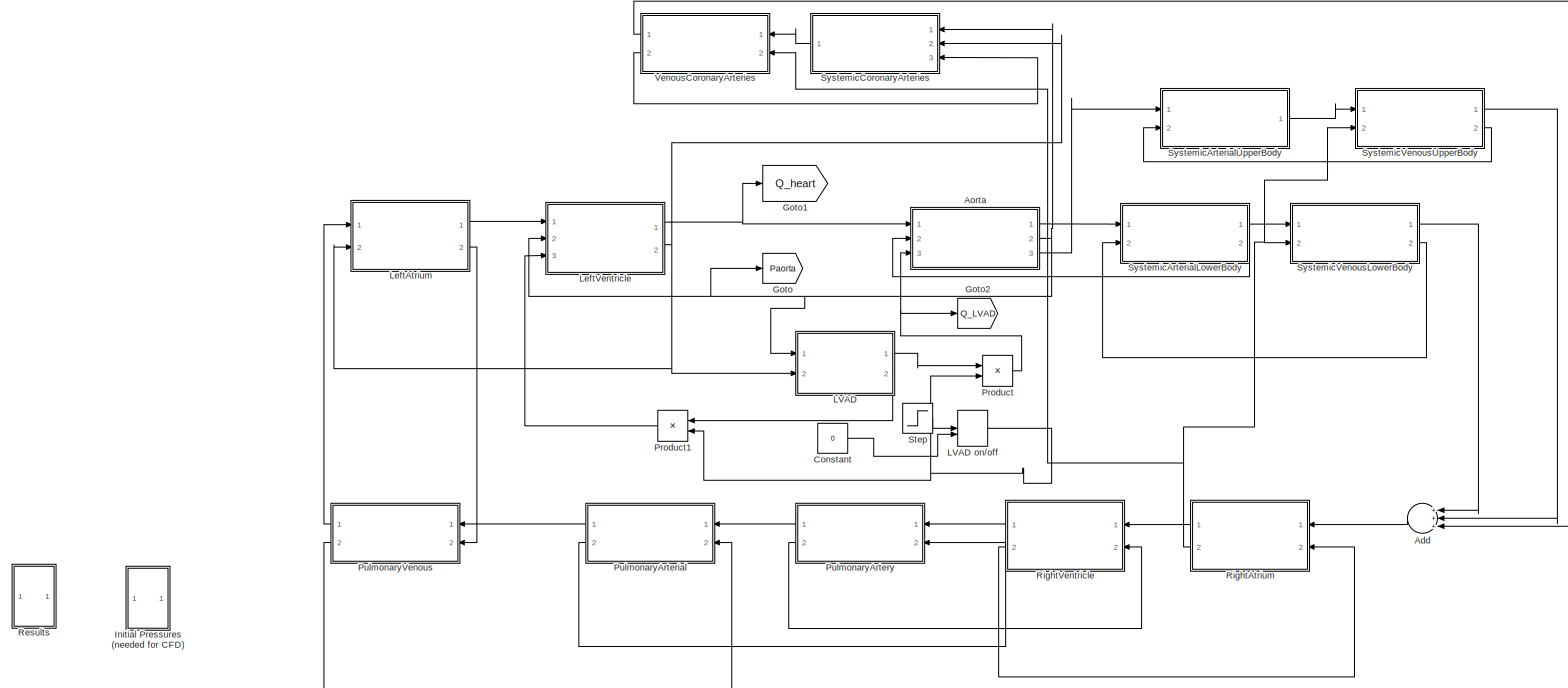
[diagram: root canvas - part 1/1, most of the canvas]
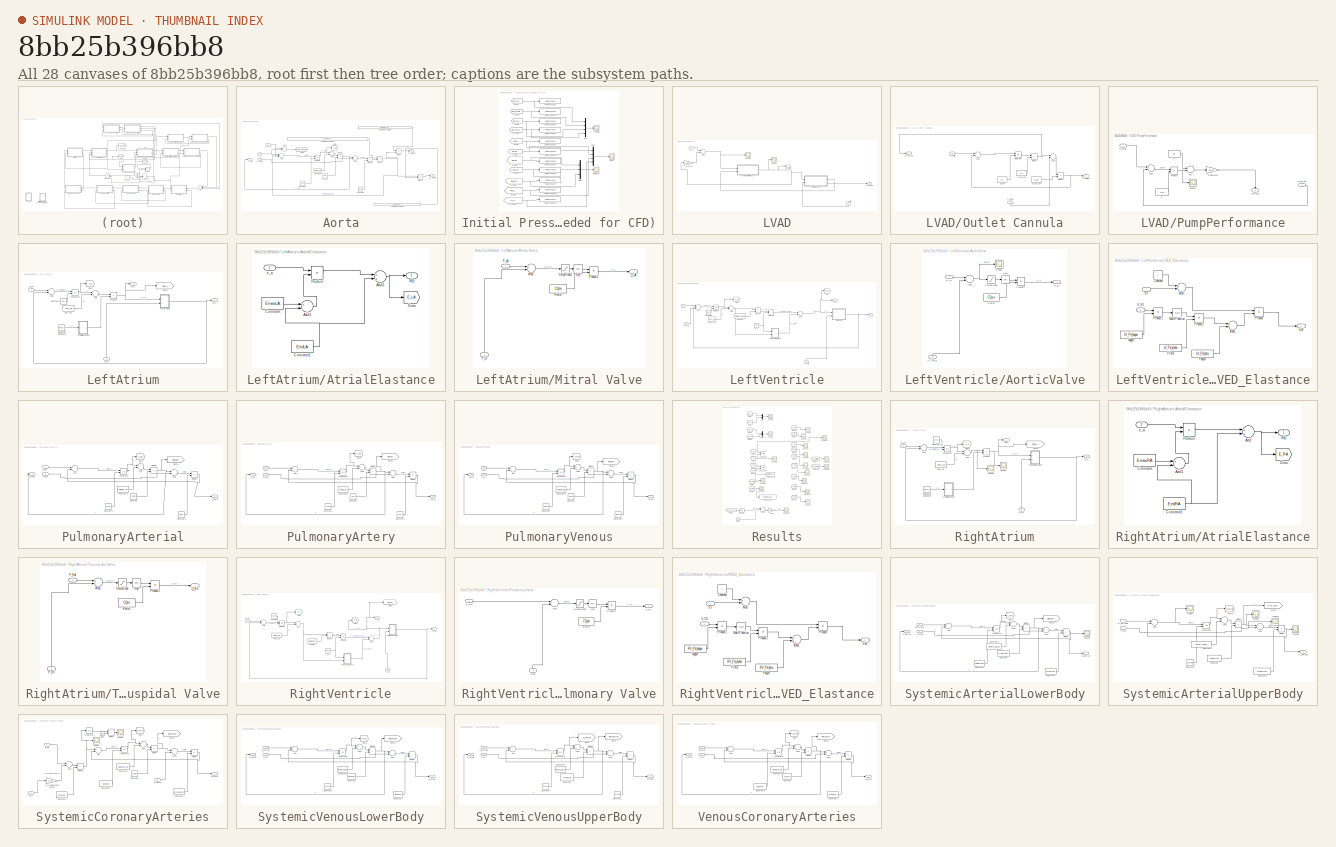
[diagram: thumbnail index - all 28 canvases of the model, root first then tree order]
MODEL slx_8bb25b396bb8
KIND model
BLOCK [Sum] Add
  InputSameDT = off
  Inputs = +++
  OutDataTypeStr = Inherit: Inherit via internal rule
  Ports = [3, 1]
  SaturateOnIntegerOverflow = off
BLOCK [SubSystem] Aorta
  Ports = [3, 3]
  RequestExecContextInheritance = off
BLOCK [Sum] Aorta/Add
  InputSameDT = off
  Inputs = +-+
  OutDataTypeStr = Inherit: Inherit via internal rule
  Ports = [3, 1]
  SaturateOnIntegerOverflow = off
BLOCK [Sum] Aorta/Add1
  InputSameDT = off
  Inputs = +-
  OutDataTypeStr = Inherit: Inherit via internal rule
  Ports = [2, 1]
  SaturateOnIntegerOverflow = off
BLOCK [Sum] Aorta/Add2
  InputSameDT = off
  Inputs = +-
  OutDataTypeStr = Inherit: Inherit via internal rule
  Ports = [2, 1]
  SaturateOnIntegerOverflow = off
BLOCK [Sum] Aorta/Add3
  InputSameDT = off
  OutDataTypeStr = Inherit: Inherit via internal rule
  Ports = [2, 1]
  SaturateOnIntegerOverflow = off
BLOCK [Constant] Aorta/Constant
  Value = Cao
BLOCK [Constant] Aorta/Constant1
  Value = Rao
BLOCK [Constant] Aorta/Constant2
  Value = V0ao
BLOCK [Constant] Aorta/Constant3
  Value = V0ao_us
BLOCK [Product] Aorta/Divide
  InputSameDT = off
  Inputs = **
  OutDataTypeStr = Inherit: Inherit via internal rule
  Ports = [2, 1]
  RndMeth = Floor
  SaturateOnIntegerOverflow = off
BLOCK [Product] Aorta/Divide1
  InputSameDT = off
  Inputs = */
  OutDataTypeStr = Inherit: Inherit via internal rule
  Ports = [2, 1]
  RndMeth = Floor
  SaturateOnIntegerOverflow = off
BLOCK [Product] Aorta/Divide2
  InputSameDT = off
  Inputs = */
  OutDataTypeStr = Inherit: Inherit via internal rule
  Ports = [2, 1]
  RndMeth = Floor
  SaturateOnIntegerOverflow = off
BLOCK [Product] Aorta/Divide3
  InputSameDT = off
  Inputs = **
  OutDataTypeStr = Inherit: Inherit via internal rule
  Ports = [2, 1]
  RndMeth = Floor
  SaturateOnIntegerOverflow = off
BLOCK [Product] Aorta/Divide4
  InputSameDT = off
  Inputs = **
  OutDataTypeStr = Inherit: Inherit via internal rule
  Ports = [2, 1]
  RndMeth = Floor
  SaturateOnIntegerOverflow = off
BLOCK [Goto] Aorta/Goto
  GotoTag = V_ao
  TagVisibility = global
BLOCK [Goto] Aorta/Goto1
  GotoTag = Q_AscAo_in
  TagVisibility = global
BLOCK [Integrator] Aorta/Integrator
  InitialConditionSource = external
  Ports = [2, 1]
BLOCK [Inport] Aorta/LVAD_Q
  IconDisplay = Port number
  Port = 3
BLOCK [Constant] Aorta/LowerBodyFraction
  Value = (RsartUB+RsvnUB)/(RsartLB+RsvnLB+RsartUB+RsvnUB)
BLOCK [Outport] Aorta/P_Aorta
  IconDisplay = Port number
  Port = 2
BLOCK [Inport] Aorta/P_sartLB
  IconDisplay = Port number
  Port = 2
BLOCK [Outport] Aorta/Q_AortaLB
  IconDisplay = Port number
BLOCK [Outport] Aorta/Q_AortaUB
  IconDisplay = Port number
  Port = 3
BLOCK [Inport] Aorta/Q_LV
  IconDisplay = Port number
BLOCK [Constant] Aorta/UpperBodyFraction
  Value = (RsartLB+RsvnLB)/(RsartLB+RsvnLB+RsartUB+RsvnUB)
BLOCK [Constant] Aorta/UpperBodyFraction1
  Value = (Rcorat+Rcorvn)/(Rcorat+Rcorvn+(RsartUB+RsvnUB)*(RsartLB+RsvnLB)/(RsartUB+RsvnUB+RsartLB+RsvnLB))
BLOCK [Constant] Constant
  Value = 0
BLOCK [Goto] Goto
  GotoTag = Paorta
  TagVisibility = global
BLOCK [Goto] Goto1
  GotoTag = Q_heart
  TagVisibility = global
BLOCK [Goto] Goto2
  GotoTag = Q_LVAD
  TagVisibility = global
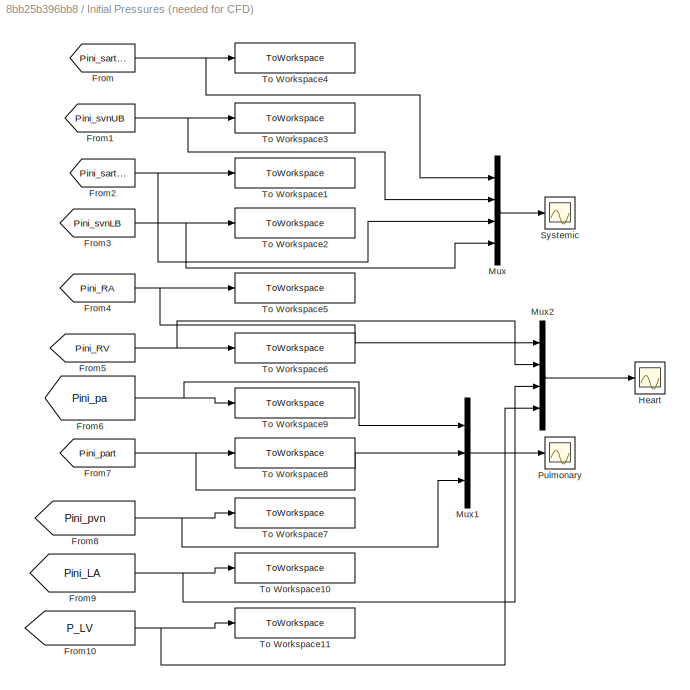
BLOCK [SubSystem] Initial Pressures (needed for CFD)
  Ports = []
  RequestExecContextInheritance = off
BLOCK [From] Initial Pressures (needed for CFD)/From
  GotoTag = Pini_sartUB
  TagVisibility = global
BLOCK [From] Initial Pressures (needed for CFD)/From1
  GotoTag = Pini_svnUB
  TagVisibility = global
BLOCK [From] Initial Pressures (needed for CFD)/From10
  GotoTag = P_LV
  TagVisibility = global
BLOCK [From] Initial Pressures (needed for CFD)/From2
  GotoTag = Pini_sartLB
  TagVisibility = global
BLOCK [From] Initial Pressures (needed for CFD)/From3
  GotoTag = Pini_svnLB
  TagVisibility = global
BLOCK [From] Initial Pressures (needed for CFD)/From4
  GotoTag = Pini_RA
  TagVisibility = global
BLOCK [From] Initial Pressures (needed for CFD)/From5
  GotoTag = Pini_RV
  TagVisibility = global
BLOCK [From] Initial Pressures (needed for CFD)/From6
  GotoTag = Pini_pa
  TagVisibility = global
BLOCK [From] Initial Pressures (needed for CFD)/From7
  GotoTag = Pini_part
  TagVisibility = global
BLOCK [From] Initial Pressures (needed for CFD)/From8
  GotoTag = Pini_pvn
  TagVisibility = global
BLOCK [From] Initial Pressures (needed for CFD)/From9
  GotoTag = Pini_LA
  TagVisibility = global
BLOCK [Scope] Initial Pressures (needed for CFD)/Heart
  Floating = off
  NumInputPorts = 1
  Ports = [1]
  SaveName = ScopeData18
  ShowLegends = off
BLOCK [Mux] Initial Pressures (needed for CFD)/Mux
  DisplayOption = bar
  Ports = [4, 1]
BLOCK [Mux] Initial Pressures (needed for CFD)/Mux1
  DisplayOption = bar
  Inputs = 3
  Ports = [3, 1]
BLOCK [Mux] Initial Pressures (needed for CFD)/Mux2
  DisplayOption = bar
  Ports = [4, 1]
BLOCK [Scope] Initial Pressures (needed for CFD)/Pulmonary
  Floating = off
  NumInputPorts = 1
  Ports = [1]
  SaveName = ScopeData17
  ShowLegends = off
BLOCK [Scope] Initial Pressures (needed for CFD)/Systemic
  Floating = off
  NumInputPorts = 1
  Ports = [1]
  SaveName = ScopeData16
  ShowLegends = off
BLOCK [ToWorkspace] Initial Pressures (needed for CFD)/To Workspace1
  FixptAsFi = on
  MaxDataPoints = inf
  Ports = [1]
  SampleTime = -1
  Save2DSignal = 3-D array (concatenate along third dimension)
  VariableName = P_INI_sartLB
BLOCK [ToWorkspace] Initial Pressures (needed for CFD)/To Workspace10
  FixptAsFi = on
  MaxDataPoints = inf
  Ports = [1]
  SampleTime = -1
  Save2DSignal = 3-D array (concatenate along third dimension)
  VariableName = P_INI_LA
BLOCK [ToWorkspace] Initial Pressures (needed for CFD)/To Workspace11
  FixptAsFi = on
  MaxDataPoints = inf
  Ports = [1]
  SampleTime = -1
  Save2DSignal = 3-D array (concatenate along third dimension)
  VariableName = P_INI_LV
BLOCK [ToWorkspace] Initial Pressures (needed for CFD)/To Workspace2
  FixptAsFi = on
  MaxDataPoints = inf
  Ports = [1]
  SampleTime = -1
  Save2DSignal = 3-D array (concatenate along third dimension)
  VariableName = P_INI_svnLB
BLOCK [ToWorkspace] Initial Pressures (needed for CFD)/To Workspace3
  FixptAsFi = on
  MaxDataPoints = inf
  Ports = [1]
  SampleTime = -1
  Save2DSignal = 3-D array (concatenate along third dimension)
  VariableName = P_INI_svnUB
BLOCK [ToWorkspace] Initial Pressures (needed for CFD)/To Workspace4
  FixptAsFi = on
  MaxDataPoints = inf
  Ports = [1]
  SampleTime = -1
  Save2DSignal = 3-D array (concatenate along third dimension)
  VariableName = P_INI_sartUB
BLOCK [ToWorkspace] Initial Pressures (needed for CFD)/To Workspace5
  FixptAsFi = on
  MaxDataPoints = inf
  Ports = [1]
  SampleTime = -1
  Save2DSignal = 3-D array (concatenate along third dimension)
  VariableName = P_INI_RA
BLOCK [ToWorkspace] Initial Pressures (needed for CFD)/To Workspace6
  FixptAsFi = on
  MaxDataPoints = inf
  Ports = [1]
  SampleTime = -1
  Save2DSignal = 3-D array (concatenate along third dimension)
  VariableName = P_INI_RV
BLOCK [ToWorkspace] Initial Pressures (needed for CFD)/To Workspace7
  FixptAsFi = on
  MaxDataPoints = inf
  Ports = [1]
  SampleTime = -1
  Save2DSignal = 3-D array (concatenate along third dimension)
  VariableName = P_INI_pvn
BLOCK [ToWorkspace] Initial Pressures (needed for CFD)/To Workspace8
  FixptAsFi = on
  MaxDataPoints = inf
  Ports = [1]
  SampleTime = -1
  Save2DSignal = 3-D array (concatenate along third dimension)
  VariableName = P_INI_part
BLOCK [ToWorkspace] Initial Pressures (needed for CFD)/To Workspace9
  FixptAsFi = on
  MaxDataPoints = inf
  Ports = [1]
  SampleTime = -1
  Save2DSignal = 3-D array (concatenate along third dimension)
  VariableName = P_INI_pa
BLOCK [SubSystem] LVAD
  Ports = [2, 2]
  RequestExecContextInheritance = off
BLOCK [ManualSwitch] LVAD on//off
BLOCK [Sum] LVAD/Add2
  InputSameDT = off
  Inputs = +-
  OutDataTypeStr = Inherit: Inherit via internal rule
  Ports = [2, 1]
  SaturateOnIntegerOverflow = off
BLOCK [Outport] LVAD/LVADQin 
  IconDisplay = Port number
  Port = 2
BLOCK [Outport] LVAD/LVADQout
  IconDisplay = Port number
BLOCK [SubSystem] LVAD/Outlet Cannula
  Ports = [2, 2]
  RequestExecContextInheritance = off
BLOCK [Sum] LVAD/Outlet Cannula/Add2
  InputSameDT = off
  Inputs = +-
  OutDataTypeStr = Inherit: Inherit via internal rule
  Ports = [2, 1]
  SaturateOnIntegerOverflow = off
BLOCK [Sum] LVAD/Outlet Cannula/Add3
  InputSameDT = off
  Inputs = +-
  OutDataTypeStr = Inherit: Inherit via internal rule
  Ports = [2, 1]
  SaturateOnIntegerOverflow = off
BLOCK [Constant] LVAD/Outlet Cannula/C_can_out
  Value = 0.1
BLOCK [Product] LVAD/Outlet Cannula/Divide1
  InputSameDT = off
  Inputs = */
  OutDataTypeStr = Inherit: Inherit via internal rule
  Ports = [2, 1]
  RndMeth = Floor
  SaturateOnIntegerOverflow = off
BLOCK [Product] LVAD/Outlet Cannula/Divide2
  InputSameDT = off
  Inputs = */
  OutDataTypeStr = Inherit: Inherit via internal rule
  Ports = [2, 1]
  RndMeth = Floor
  SaturateOnIntegerOverflow = off
BLOCK [Integrator] LVAD/Outlet Cannula/Integrator
  InitialConditionSource = external
  Ports = [2, 1]
BLOCK [Inport] LVAD/Outlet Cannula/LVADQin
  IconDisplay = Port number
BLOCK [Outport] LVAD/Outlet Cannula/LVADQout
  IconDisplay = Port number
  Port = 2
BLOCK [Inport] LVAD/Outlet Cannula/P_aorta
  IconDisplay = Port number
  Port = 2
BLOCK [Outport] LVAD/Outlet Cannula/P_can_out
  IconDisplay = Port number
BLOCK [Constant] LVAD/Outlet Cannula/R_can_out
  Value = 0.05
BLOCK [Constant] LVAD/Outlet Cannula/V0can
  Value = 13
BLOCK [Inport] LVAD/P_LV
  IconDisplay = Port number
  Port = 2
BLOCK [Inport] LVAD/P_aorta
  IconDisplay = Port number
BLOCK [SubSystem] LVAD/PumpPerformance
  Ports = [2, 1]
  RequestExecContextInheritance = off
BLOCK [Sum] LVAD/PumpPerformance/Add
  InputSameDT = off
  Inputs = +-
  OutDataTypeStr = Inherit: Inherit via internal rule
  Ports = [2, 1]
  SaturateOnIntegerOverflow = off
BLOCK [Sum] LVAD/PumpPerformance/Add1
  InputSameDT = off
  Inputs = +-
  OutDataTypeStr = Inherit: Inherit via internal rule
  Ports = [2, 1]
  SaturateOnIntegerOverflow = off
BLOCK [Outport] LVAD/PumpPerformance/LVADQin
  IconDisplay = Port number
BLOCK [Inport] LVAD/PumpPerformance/P_can_in
  IconDisplay = Port number
BLOCK [Inport] LVAD/PumpPerformance/P_can_out
  IconDisplay = Port number
  Port = 2
BLOCK [Product] LVAD/PumpPerformance/Product
  InputSameDT = off
  Inputs = **
  OutDataTypeStr = Inherit: Inherit via internal rule
  Ports = [2, 1]
  RndMeth = Floor
  SaturateOnIntegerOverflow = off
BLOCK [Scope] LVAD/PumpPerformance/Scope1
  Floating = off
  NumInputPorts = 1
  Ports = [1]
  SaveName = ScopeData25
  ShowLegends = off
  TimeRange = 5
  YMax = 45
BLOCK [Constant] LVAD/PumpPerformance/a
  Value = 15
BLOCK [Constant] LVAD/PumpPerformance/b
  Value = -0.2
BLOCK [Gain] LVAD/PumpPerformance/l//min=>ml//s
  Gain = 16.67
  OutDataTypeStr = Inherit: Inherit via internal rule
  ParamDataTypeStr = Inherit: Inherit via internal rule
  SaturateOnIntegerOverflow = off
BLOCK [Gain] LVAD/R_can_in
  Gain = 0.05
  OutDataTypeStr = Inherit: Inherit via internal rule
  ParamDataTypeStr = Inherit: Inherit via internal rule
  SaturateOnIntegerOverflow = off
BLOCK [Scope] LVAD/Scope
  Floating = off
  NumInputPorts = 1
  Ports = [1]
  SaveName = ScopeData24
  ShowLegends = off
BLOCK [Scope] LVAD/Scope1
  Floating = off
  NumInputPorts = 1
  Ports = [1]
  SaveName = ScopeData32
  ShowLegends = off
BLOCK [SubSystem] LeftAtrium
  Ports = [2, 2]
  RequestExecContextInheritance = off
BLOCK [Sum] LeftAtrium/Add
  InputSameDT = off
  Inputs = +-
  OutDataTypeStr = Inherit: Inherit via internal rule
  Ports = [2, 1]
  SaturateOnIntegerOverflow = off
BLOCK [Sum] LeftAtrium/Add2
  InputSameDT = off
  Inputs = +-
  OutDataTypeStr = Inherit: Inherit via internal rule
  Ports = [2, 1]
  SaturateOnIntegerOverflow = off
BLOCK [SubSystem] LeftAtrium/AtrialElastance
  Ports = [1, 1]
  RequestExecContextInheritance = off
BLOCK [Sum] LeftAtrium/AtrialElastance/Add1
  InputSameDT = off
  Inputs = +-
  OutDataTypeStr = Inherit: Inherit via internal rule
  Ports = [2, 1]
  SaturateOnIntegerOverflow = off
BLOCK [Sum] LeftAtrium/AtrialElastance/Add2
  InputSameDT = off
  OutDataTypeStr = Inherit: Inherit via internal rule
  Ports = [2, 1]
  SaturateOnIntegerOverflow = off
BLOCK [Constant] LeftAtrium/AtrialElastance/Constant
  Value = EmaxLA
BLOCK [Constant] LeftAtrium/AtrialElastance/Constant1
  Value = EedLA
BLOCK [Outport] LeftAtrium/AtrialElastance/E(t)
  IconDisplay = Port number
BLOCK [Goto] LeftAtrium/AtrialElastance/Goto
  GotoTag = E_LA
  TagVisibility = global
BLOCK [Product] LeftAtrium/AtrialElastance/Product
  InputSameDT = off
  OutDataTypeStr = Inherit: Inherit via internal rule
  Ports = [2, 1]
  RndMeth = Floor
  SaturateOnIntegerOverflow = off
BLOCK [Inport] LeftAtrium/AtrialElastance/e_a
  IconDisplay = Port number
BLOCK [Constant] LeftAtrium/Constant2
  Value = V0LA
BLOCK [Goto] LeftAtrium/Goto
  GotoTag = V_la
  TagVisibility = global
BLOCK [Goto] LeftAtrium/Goto1
  GotoTag = Pini_LA
  TagVisibility = global
BLOCK [Integrator] LeftAtrium/Integrator
  InitialConditionSource = external
  Ports = [2, 1]
BLOCK [SubSystem] LeftAtrium/Mitral Valve
  Ports = [2, 1]
  RequestExecContextInheritance = off
BLOCK [Sum] LeftAtrium/Mitral Valve/Add1
  InputSameDT = off
  Inputs = +-
  OutDataTypeStr = Inherit: Inherit via internal rule
  Ports = [2, 1]
  SaturateOnIntegerOverflow = off
BLOCK [Inport] LeftAtrium/Mitral Valve/P_LA
  IconDisplay = Port number
BLOCK [Inport] LeftAtrium/Mitral Valve/P_LV
  IconDisplay = Port number
  Port = 2
BLOCK [Product] LeftAtrium/Mitral Valve/Product1
  InputSameDT = off
  OutDataTypeStr = Inherit: Inherit via internal rule
  Ports = [2, 1]
  RndMeth = Floor
  SaturateOnIntegerOverflow = off
BLOCK [Outport] LeftAtrium/Mitral Valve/Q_LA
  IconDisplay = Port number
BLOCK [Constant] LeftAtrium/Mitral Valve/Rvalve
  Value = CQmi
BLOCK [Sqrt] LeftAtrium/Mitral Valve/Sqrt
BLOCK [Saturate] LeftAtrium/Mitral Valve/ValveDiode1
  InputPortMap = u0
  LowerLimit = 0.0001
  Ports = [1, 1]
  UpperLimit = inf
  ZeroCross = off
BLOCK [Outport] LeftAtrium/P_LA
  IconDisplay = Port number
  Port = 2
BLOCK [Inport] LeftAtrium/P_LV
  IconDisplay = Port number
  Port = 2
BLOCK [Product] LeftAtrium/Product
  InputSameDT = off
  OutDataTypeStr = Inherit: Inherit via internal rule
  Ports = [2, 1]
  RndMeth = Floor
  SaturateOnIntegerOverflow = off
BLOCK [Outport] LeftAtrium/Q_LA
  IconDisplay = Port number
BLOCK [Inport] LeftAtrium/Q_pvn
  IconDisplay = Port number
BLOCK [Reference] LeftAtrium/Repeating Sequence  REF=simulink/Sources/Repeating
Sequence
  Ports = [0, 1]
  SourceBlock = simulink/Sources/Repeating\nSequence
  SourceType = Repeating table
  rep_seq_t = time
  rep_seq_y = e_a
BLOCK [Constant] LeftAtrium/V0LA_US
  Value = V0LA_us
BLOCK [SubSystem] LeftVentricle
  Ports = [3, 2]
  RequestExecContextInheritance = off
BLOCK [Sum] LeftVentricle/Add
  InputSameDT = off
  Inputs = +-
  OutDataTypeStr = Inherit: Inherit via internal rule
  Ports = [2, 1]
  SaturateOnIntegerOverflow = off
BLOCK [Sum] LeftVentricle/Add1
  InputSameDT = off
  OutDataTypeStr = Inherit: Inherit via internal rule
  Ports = [2, 1]
  SaturateOnIntegerOverflow = off
BLOCK [Sum] LeftVentricle/Add2
  InputSameDT = off
  Inputs = +--
  OutDataTypeStr = Inherit: Inherit via internal rule
  Ports = [3, 1]
  SaturateOnIntegerOverflow = off
BLOCK [SubSystem] LeftVentricle/AorticValve
  Ports = [2, 1]
  RequestExecContextInheritance = off
BLOCK [Sum] LeftVentricle/AorticValve/Add1
  InputSameDT = off
  Inputs = +-
  OutDataTypeStr = Inherit: Inherit via internal rule
  Ports = [2, 1]
  SaturateOnIntegerOverflow = off
BLOCK [Inport] LeftVentricle/AorticValve/P_Aorta
  IconDisplay = Port number
  Port = 2
BLOCK [Inport] LeftVentricle/AorticValve/P_LV
  IconDisplay = Port number
BLOCK [Product] LeftVentricle/AorticValve/Product1
  InputSameDT = off
  OutDataTypeStr = Inherit: Inherit via internal rule
  Ports = [2, 1]
  RndMeth = Floor
  SaturateOnIntegerOverflow = off
BLOCK [Outport] LeftVentricle/AorticValve/Q_LV
  IconDisplay = Port number
BLOCK [Constant] LeftVentricle/AorticValve/Rvalve
  Value = CQao
BLOCK [Scope] LeftVentricle/AorticValve/Scope
  Floating = off
  NumInputPorts = 1
  Ports = [1]
  SaveName = ScopeData34
  ShowLegends = off
BLOCK [Sqrt] LeftVentricle/AorticValve/Sqrt
BLOCK [Saturate] LeftVentricle/AorticValve/ValveDiode
  InputPortMap = u0
  LowerLimit = 0
  Ports = [1, 1]
  UpperLimit = inf
  ZeroCross = off
BLOCK [Constant] LeftVentricle/Constant
  Value = EmaxLV*0.28
BLOCK [Constant] LeftVentricle/Constant2
  Value = V0LV
BLOCK [Goto] LeftVentricle/Goto
  GotoTag = V_LV
  TagVisibility = global
BLOCK [Goto] LeftVentricle/Goto1
  GotoTag = P_LV
  TagVisibility = global
BLOCK [Integrator] LeftVentricle/Integrator
  InitialConditionSource = external
  Ports = [2, 1]
BLOCK [Inport] LeftVentricle/LVAD_Q
  IconDisplay = Port number
  Port = 3
BLOCK [SubSystem] LeftVentricle/LVED_Elastance
  Ports = [2, 1]
  RequestExecContextInheritance = off
BLOCK [Sum] LeftVentricle/LVED_Elastance/Add
  InputSameDT = off
  Inputs = +-
  OutDataTypeStr = Inherit: Inherit via internal rule
  Ports = [2, 1]
  SaturateOnIntegerOverflow = off
BLOCK [Sum] LeftVentricle/LVED_Elastance/Add1
  InputSameDT = off
  OutDataTypeStr = Inherit: Inherit via internal rule
  Ports = [2, 1]
  SaturateOnIntegerOverflow = off
BLOCK [Constant] LeftVentricle/LVED_Elastance/Constant
BLOCK [Outport] LeftVentricle/LVED_Elastance/Eed
  IconDisplay = Port number
BLOCK [Math] LeftVentricle/LVED_Elastance/Math Function
  Ports = [1, 1]
BLOCK [Constant] LeftVentricle/LVED_Elastance/Pasym
  Value = LV_Pd_beta
BLOCK [Constant] LeftVentricle/LVED_Elastance/Pinter
  Value = LV_Pd_alpha
BLOCK [Product] LeftVentricle/LVED_Elastance/Product
  InputSameDT = off
  OutDataTypeStr = Inherit: Inherit via internal rule
  Ports = [2, 1]
  RndMeth = Floor
  SaturateOnIntegerOverflow = off
BLOCK [Product] LeftVentricle/LVED_Elastance/Product1
  InputSameDT = off
  OutDataTypeStr = Inherit: Inherit via internal rule
  Ports = [2, 1]
  RndMeth = Floor
  SaturateOnIntegerOverflow = off
BLOCK [Product] LeftVentricle/LVED_Elastance/Product2
  InputSameDT = off
  OutDataTypeStr = Inherit: Inherit via internal rule
  Ports = [2, 1]
  RndMeth = Floor
  SaturateOnIntegerOverflow = off
BLOCK [Inport] LeftVentricle/LVED_Elastance/V-V0
  IconDisplay = Port number
  Port = 2
BLOCK [Inport] LeftVentricle/LVED_Elastance/e_v
  IconDisplay = Port number
BLOCK [Constant] LeftVentricle/LVED_Elastance/kappa
  Value = LV_Pd_kappa
BLOCK [Inport] LeftVentricle/P_Aorta
  IconDisplay = Port number
  Port = 2
BLOCK [Outport] LeftVentricle/P_LV
  IconDisplay = Port number
  Port = 2
BLOCK [Product] LeftVentricle/Product
  InputSameDT = off
  OutDataTypeStr = Inherit: Inherit via internal rule
  Ports = [2, 1]
  RndMeth = Floor
  SaturateOnIntegerOverflow = off
BLOCK [Product] LeftVentricle/Product1
  InputSameDT = off
  OutDataTypeStr = Inherit: Inherit via internal rule
  Ports = [2, 1]
  RndMeth = Floor
  SaturateOnIntegerOverflow = off
BLOCK [Inport] LeftVentricle/Q_LA
  IconDisplay = Port number
BLOCK [Outport] LeftVentricle/Q_LV
  IconDisplay = Port number
BLOCK [Constant] LeftVentricle/V0LV_us
  Value = V0LV_us
BLOCK [Reference] LeftVentricle/e_v  REF=simulink/Sources/Repeating
Sequence
  Ports = [0, 1]
  SourceBlock = simulink/Sources/Repeating\nSequence
  SourceType = Repeating table
  rep_seq_t = time
  rep_seq_y = e_v
BLOCK [Product] Product
  InputSameDT = off
  OutDataTypeStr = Inherit: Inherit via internal rule
  Ports = [2, 1]
  RndMeth = Floor
  SaturateOnIntegerOverflow = off
BLOCK [Product] Product1
  InputSameDT = off
  OutDataTypeStr = Inherit: Inherit via internal rule
  Ports = [2, 1]
  RndMeth = Floor
  SaturateOnIntegerOverflow = off
BLOCK [SubSystem] PulmonaryArterial
  Ports = [2, 2]
  RequestExecContextInheritance = off
BLOCK [Sum] PulmonaryArterial/Add
  InputSameDT = off
  Inputs = +-
  OutDataTypeStr = Inherit: Inherit via internal rule
  Ports = [2, 1]
  SaturateOnIntegerOverflow = off
BLOCK [Sum] PulmonaryArterial/Add1
  InputSameDT = off
  Inputs = +-
  OutDataTypeStr = Inherit: Inherit via internal rule
  Ports = [2, 1]
  SaturateOnIntegerOverflow = off
BLOCK [Sum] PulmonaryArterial/Add2
  InputSameDT = off
  Inputs = +-
  OutDataTypeStr = Inherit: Inherit via internal rule
  Ports = [2, 1]
  SaturateOnIntegerOverflow = off
BLOCK [Constant] PulmonaryArterial/Constant
  Value = Cpart
BLOCK [Constant] PulmonaryArterial/Constant1
  Value = Rpart
BLOCK [Constant] PulmonaryArterial/Constant2
  Value = V0part
BLOCK [Constant] PulmonaryArterial/Constant3
  Value = V0part_us
BLOCK [Product] PulmonaryArterial/Divide1
  InputSameDT = off
  Inputs = */
  OutDataTypeStr = Inherit: Inherit via internal rule
  Ports = [2, 1]
  RndMeth = Floor
  SaturateOnIntegerOverflow = off
BLOCK [Product] PulmonaryArterial/Divide2
  InputSameDT = off
  Inputs = */
  OutDataTypeStr = Inherit: Inherit via internal rule
  Ports = [2, 1]
  RndMeth = Floor
  SaturateOnIntegerOverflow = off
BLOCK [Goto] PulmonaryArterial/Goto
  GotoTag = V_part
  TagVisibility = global
BLOCK [Goto] PulmonaryArterial/Goto1
  GotoTag = Pini_part
  TagVisibility = global
BLOCK [Integrator] PulmonaryArterial/Integrator
  InitialConditionSource = external
  Ports = [2, 1]
BLOCK [Outport] PulmonaryArterial/P_part
  IconDisplay = Port number
  Port = 2
BLOCK [Inport] PulmonaryArterial/P_pvn
  IconDisplay = Port number
  Port = 2
BLOCK [Inport] PulmonaryArterial/Q_pa
  IconDisplay = Port number
BLOCK [Outport] PulmonaryArterial/Q_part
  IconDisplay = Port number
BLOCK [SubSystem] PulmonaryArtery
  Ports = [2, 2]
  RequestExecContextInheritance = off
BLOCK [Sum] PulmonaryArtery/Add
  InputSameDT = off
  Inputs = +-
  OutDataTypeStr = Inherit: Inherit via internal rule
  Ports = [2, 1]
  SaturateOnIntegerOverflow = off
BLOCK [Sum] PulmonaryArtery/Add1
  InputSameDT = off
  Inputs = +-
  OutDataTypeStr = Inherit: Inherit via internal rule
  Ports = [2, 1]
  SaturateOnIntegerOverflow = off
BLOCK [Sum] PulmonaryArtery/Add2
  InputSameDT = off
  Inputs = +-
  OutDataTypeStr = Inherit: Inherit via internal rule
  Ports = [2, 1]
  SaturateOnIntegerOverflow = off
BLOCK [Constant] PulmonaryArtery/Constant
  Value = Cpa
BLOCK [Constant] PulmonaryArtery/Constant1
  Value = Rpa
BLOCK [Constant] PulmonaryArtery/Constant2
  Value = V0pa
BLOCK [Constant] PulmonaryArtery/Constant3
  Value = V0pa_us
BLOCK [Product] PulmonaryArtery/Divide1
  InputSameDT = off
  Inputs = */
  OutDataTypeStr = Inherit: Inherit via internal rule
  Ports = [2, 1]
  RndMeth = Floor
  SaturateOnIntegerOverflow = off
BLOCK [Product] PulmonaryArtery/Divide2
  InputSameDT = off
  Inputs = */
  OutDataTypeStr = Inherit: Inherit via internal rule
  Ports = [2, 1]
  RndMeth = Floor
  SaturateOnIntegerOverflow = off
BLOCK [Goto] PulmonaryArtery/Goto
  GotoTag = V_pa
  TagVisibility = global
BLOCK [Goto] PulmonaryArtery/Goto1
  GotoTag = Pini_pa
  TagVisibility = global
BLOCK [Integrator] PulmonaryArtery/Integrator
  InitialConditionSource = external
  Ports = [2, 1]
BLOCK [Outport] PulmonaryArtery/P_pa
  IconDisplay = Port number
  Port = 2
BLOCK [Inport] PulmonaryArtery/P_part
  IconDisplay = Port number
  Port = 2
BLOCK [Inport] PulmonaryArtery/Q_RV
  IconDisplay = Port number
BLOCK [Outport] PulmonaryArtery/Q_pa
  IconDisplay = Port number
BLOCK [SubSystem] PulmonaryVenous
  Ports = [2, 2]
  RequestExecContextInheritance = off
BLOCK [Sum] PulmonaryVenous/Add
  InputSameDT = off
  Inputs = +-
  OutDataTypeStr = Inherit: Inherit via internal rule
  Ports = [2, 1]
  SaturateOnIntegerOverflow = off
BLOCK [Sum] PulmonaryVenous/Add1
  InputSameDT = off
  Inputs = +-
  OutDataTypeStr = Inherit: Inherit via internal rule
  Ports = [2, 1]
  SaturateOnIntegerOverflow = off
BLOCK [Sum] PulmonaryVenous/Add2
  InputSameDT = off
  Inputs = +-
  OutDataTypeStr = Inherit: Inherit via internal rule
  Ports = [2, 1]
  SaturateOnIntegerOverflow = off
BLOCK [Constant] PulmonaryVenous/Constant
  Value = Cpvn
BLOCK [Constant] PulmonaryVenous/Constant1
  Value = Rpvn
BLOCK [Constant] PulmonaryVenous/Constant2
  Value = V0pvn
BLOCK [Constant] PulmonaryVenous/Constant3
  Value = V0pvn_us
  VectorParams1D = off
BLOCK [Product] PulmonaryVenous/Divide1
  InputSameDT = off
  Inputs = */
  OutDataTypeStr = Inherit: Inherit via internal rule
  Ports = [2, 1]
  RndMeth = Floor
  SaturateOnIntegerOverflow = off
BLOCK [Product] PulmonaryVenous/Divide2
  InputSameDT = off
  Inputs = */
  OutDataTypeStr = Inherit: Inherit via internal rule
  Ports = [2, 1]
  RndMeth = Floor
  SaturateOnIntegerOverflow = off
BLOCK [Goto] PulmonaryVenous/Goto
  GotoTag = V_pvn
  TagVisibility = global
BLOCK [Goto] PulmonaryVenous/Goto1
  GotoTag = Pini_pvn
  TagVisibility = global
BLOCK [Integrator] PulmonaryVenous/Integrator
  InitialConditionSource = external
  Ports = [2, 1]
BLOCK [Inport] PulmonaryVenous/P_LA
  IconDisplay = Port number
  Port = 2
BLOCK [Outport] PulmonaryVenous/P_pvn
  IconDisplay = Port number
  Port = 2
BLOCK [Inport] PulmonaryVenous/Q_part
  IconDisplay = Port number
BLOCK [Outport] PulmonaryVenous/Q_pvn
  IconDisplay = Port number
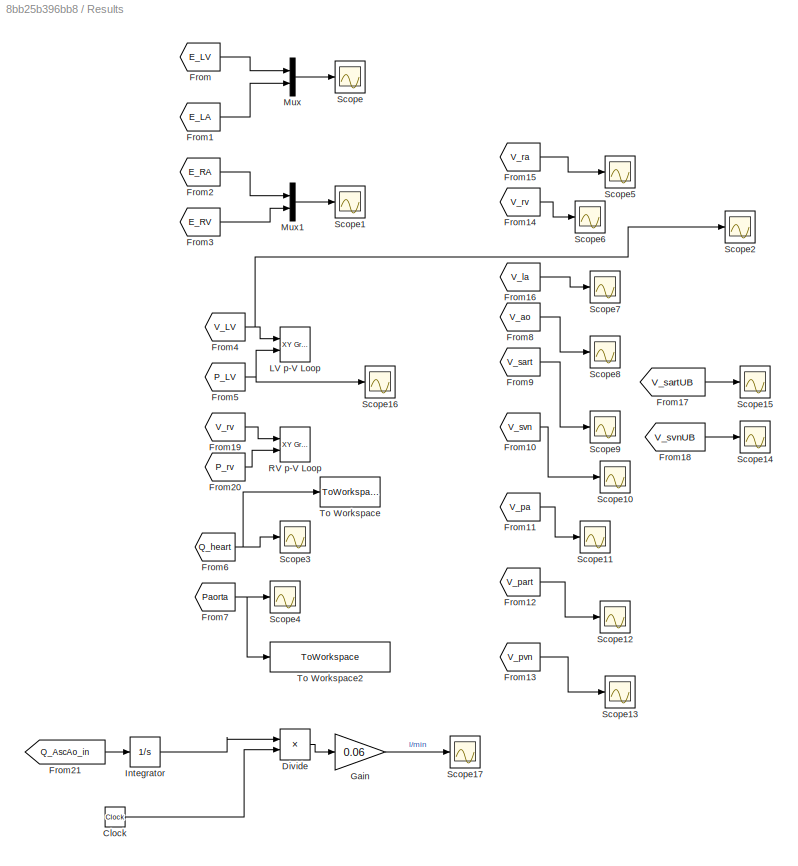
BLOCK [SubSystem] Results
  Ports = []
  RequestExecContextInheritance = off
BLOCK [Clock] Results/Clock
BLOCK [Product] Results/Divide
  InputSameDT = off
  Inputs = */
  OutDataTypeStr = Inherit: Inherit via internal rule
  Ports = [2, 1]
  RndMeth = Floor
  SaturateOnIntegerOverflow = off
BLOCK [From] Results/From
  GotoTag = E_LV
BLOCK [From] Results/From1
  GotoTag = E_LA
  TagVisibility = global
BLOCK [From] Results/From10
  GotoTag = V_svn
  TagVisibility = global
BLOCK [From] Results/From11
  GotoTag = V_pa
  TagVisibility = global
BLOCK [From] Results/From12
  GotoTag = V_part
  TagVisibility = global
BLOCK [From] Results/From13
  GotoTag = V_pvn
  TagVisibility = global
BLOCK [From] Results/From14
  GotoTag = V_rv
  TagVisibility = global
BLOCK [From] Results/From15
  GotoTag = V_ra
  TagVisibility = global
BLOCK [From] Results/From16
  GotoTag = V_la
  TagVisibility = global
BLOCK [From] Results/From17
  GotoTag = V_sartUB
  TagVisibility = global
BLOCK [From] Results/From18
  GotoTag = V_svnUB
  TagVisibility = global
BLOCK [From] Results/From19
  GotoTag = V_rv
  TagVisibility = global
BLOCK [From] Results/From2
  GotoTag = E_RA
  TagVisibility = global
BLOCK [From] Results/From20
  GotoTag = P_rv
  TagVisibility = global
BLOCK [From] Results/From21
  GotoTag = Q_AscAo_in
  TagVisibility = global
BLOCK [From] Results/From3
  GotoTag = E_RV
BLOCK [From] Results/From4
  GotoTag = V_LV
  TagVisibility = global
BLOCK [From] Results/From5
  GotoTag = P_LV
  TagVisibility = global
BLOCK [From] Results/From6
  GotoTag = Q_heart
  TagVisibility = global
BLOCK [From] Results/From7
  GotoTag = Paorta
  TagVisibility = global
BLOCK [From] Results/From8
  GotoTag = V_ao
  TagVisibility = global
BLOCK [From] Results/From9
  GotoTag = V_sart
  TagVisibility = global
BLOCK [Gain] Results/Gain
  Gain = 0.06
  OutDataTypeStr = Inherit: Inherit via internal rule
  ParamDataTypeStr = Inherit: Inherit via internal rule
  SaturateOnIntegerOverflow = off
BLOCK [Integrator] Results/Integrator
  Ports = [1, 1]
BLOCK [Reference] Results/LV p-V Loop  REF=simulink/Sinks/XY Graph
  Ports = [2]
  SourceBlock = simulink/Sinks/XY Graph
  SourceType = XY scope.
  st = -1
  xmax = 200
  xmin = -1
  ymax = 150
  ymin = -1
BLOCK [Mux] Results/Mux
  DisplayOption = bar
  Inputs = 2
  Ports = [2, 1]
BLOCK [Mux] Results/Mux1
  DisplayOption = bar
  Inputs = 2
  Ports = [2, 1]
BLOCK [Reference] Results/RV p-V Loop  REF=simulink/Sinks/XY Graph
  Ports = [2]
  SourceBlock = simulink/Sinks/XY Graph
  SourceType = XY scope.
  st = -1
  xmax = 150
  xmin = -1
  ymax = 150
  ymin = -1
BLOCK [Scope] Results/Scope
  Floating = off
  NumInputPorts = 1
  Ports = [1]
  ShowLegends = off
BLOCK [Scope] Results/Scope1
  Floating = off
  NumInputPorts = 1
  Ports = [1]
  SaveName = ScopeData1
  ShowLegends = off
BLOCK [Scope] Results/Scope10
  Floating = off
  NumInputPorts = 1
  Ports = [1]
  SaveName = ScopeData12
  ShowLegends = off
BLOCK [Scope] Results/Scope11
  Floating = off
  NumInputPorts = 1
  Ports = [1]
  SaveName = ScopeData13
  ShowLegends = off
BLOCK [Scope] Results/Scope12
  Floating = off
  NumInputPorts = 1
  Ports = [1]
  SaveName = ScopeData14
  ShowLegends = off
  YMax = 330
  YMin = 240
BLOCK [Scope] Results/Scope13
  Floating = off
  NumInputPorts = 1
  Ports = [1]
  SaveName = ScopeData15
  ShowLegends = off
BLOCK [Scope] Results/Scope14
  Floating = off
  NumInputPorts = 1
  Ports = [1]
  SaveName = ScopeData21
  ShowLegends = off
BLOCK [Scope] Results/Scope15
  Floating = off
  NumInputPorts = 1
  Ports = [1]
  SaveName = ScopeData22
  ShowLegends = off
BLOCK [Scope] Results/Scope16
  Floating = off
  NumInputPorts = 1
  Ports = [1]
  SaveName = ScopeData20
  ShowLegends = off
BLOCK [Scope] Results/Scope17
  Floating = off
  NumInputPorts = 1
  Ports = [1]
  SaveName = ScopeData30
  ShowLegends = off
  YMax = 64
  YMin = 48
BLOCK [Scope] Results/Scope2
  Floating = off
  NumInputPorts = 1
  Ports = [1]
  SaveName = ScopeData4
  ShowLegends = off
BLOCK [Scope] Results/Scope3
  Floating = off
  NumInputPorts = 1
  Ports = [1]
  SaveName = ScopeData5
  ShowLegends = off
  TimeRange = 12.57889009793254
  YMax = 713.4020618556701
  YMin = 0
BLOCK [Scope] Results/Scope4
  Floating = off
  NumInputPorts = 1
  Ports = [1]
  SaveName = ScopeData6
  ShowLegends = off
BLOCK [Scope] Results/Scope5
  Floating = off
  NumInputPorts = 1
  Ports = [1]
  SaveName = ScopeData7
  ShowLegends = off
BLOCK [Scope] Results/Scope6
  Floating = off
  NumInputPorts = 1
  Ports = [1]
  SaveName = ScopeData8
  ShowLegends = off
BLOCK [Scope] Results/Scope7
  Floating = off
  NumInputPorts = 1
  Ports = [1]
  SaveName = ScopeData9
  ShowLegends = off
BLOCK [Scope] Results/Scope8
  Floating = off
  NumInputPorts = 1
  Ports = [1]
  SaveName = ScopeData10
  ShowLegends = off
BLOCK [Scope] Results/Scope9
  Floating = off
  NumInputPorts = 1
  Ports = [1]
  SaveName = ScopeData11
  ShowLegends = off
BLOCK [ToWorkspace] Results/To Workspace
  FixptAsFi = on
  MaxDataPoints = 100
  Ports = [1]
  SampleTime = -1
  Save2DSignal = 3-D array (concatenate along third dimension)
  VariableName = Qheart
BLOCK [ToWorkspace] Results/To Workspace2
  FixptAsFi = on
  MaxDataPoints = inf
  Ports = [1]
  SampleTime = -1
  Save2DSignal = 3-D array (concatenate along third dimension)
  VariableName = P_INI_AORTA
BLOCK [SubSystem] RightAtrium
  Ports = [2, 2]
  RequestExecContextInheritance = off
BLOCK [Sum] RightAtrium/Add
  InputSameDT = off
  Inputs = +-
  OutDataTypeStr = Inherit: Inherit via internal rule
  Ports = [2, 1]
  SaturateOnIntegerOverflow = off
BLOCK [Sum] RightAtrium/Add2
  InputSameDT = off
  Inputs = +-
  OutDataTypeStr = Inherit: Inherit via internal rule
  Ports = [2, 1]
  SaturateOnIntegerOverflow = off
BLOCK [SubSystem] RightAtrium/AtrialElastance
  Ports = [1, 1]
  RequestExecContextInheritance = off
BLOCK [Sum] RightAtrium/AtrialElastance/Add
  InputSameDT = off
  OutDataTypeStr = Inherit: Inherit via internal rule
  Ports = [2, 1]
  SaturateOnIntegerOverflow = off
BLOCK [Sum] RightAtrium/AtrialElastance/Add1
  InputSameDT = off
  Inputs = +-
  OutDataTypeStr = Inherit: Inherit via internal rule
  Ports = [2, 1]
  SaturateOnIntegerOverflow = off
BLOCK [Constant] RightAtrium/AtrialElastance/Constant
  Value = EmaxRA
BLOCK [Constant] RightAtrium/AtrialElastance/Constant1
  Value = EedRA
BLOCK [Outport] RightAtrium/AtrialElastance/E(t)
  IconDisplay = Port number
BLOCK [Goto] RightAtrium/AtrialElastance/Goto
  GotoTag = E_RA
  TagVisibility = global
BLOCK [Product] RightAtrium/AtrialElastance/Product
  InputSameDT = off
  OutDataTypeStr = Inherit: Inherit via internal rule
  Ports = [2, 1]
  RndMeth = Floor
  SaturateOnIntegerOverflow = off
BLOCK [Inport] RightAtrium/AtrialElastance/e_a
  IconDisplay = Port number
BLOCK [Constant] RightAtrium/Constant2
  Value = V0RA
BLOCK [Goto] RightAtrium/Goto
  GotoTag = V_ra
  TagVisibility = global
BLOCK [Goto] RightAtrium/Goto1
  GotoTag = Pini_RA
  TagVisibility = global
BLOCK [Integrator] RightAtrium/Integrator
  InitialConditionSource = external
  Ports = [2, 1]
BLOCK [Outport] RightAtrium/P_RA
  IconDisplay = Port number
  Port = 2
BLOCK [Inport] RightAtrium/P_RV
  IconDisplay = Port number
  Port = 2
BLOCK [Product] RightAtrium/Product
  InputSameDT = off
  OutDataTypeStr = Inherit: Inherit via internal rule
  Ports = [2, 1]
  RndMeth = Floor
  SaturateOnIntegerOverflow = off
BLOCK [Outport] RightAtrium/Q_RA
  IconDisplay = Port number
BLOCK [Inport] RightAtrium/Q_svn
  IconDisplay = Port number
BLOCK [Reference] RightAtrium/Repeating Sequence  REF=simulink/Sources/Repeating
Sequence
  Ports = [0, 1]
  SourceBlock = simulink/Sources/Repeating\nSequence
  SourceType = Repeating table
  rep_seq_t = time
  rep_seq_y = e_a
BLOCK [Scope] RightAtrium/Scope1
  Floating = off
  NumInputPorts = 1
  Ports = [1]
  SaveName = ScopeData2
  ShowLegends = off
BLOCK [Scope] RightAtrium/Scope2
  Floating = off
  NumInputPorts = 1
  Ports = [1]
  SaveName = ScopeData3
  ShowLegends = off
BLOCK [SubSystem] RightAtrium/Tricuspidal Valve
  Ports = [2, 1]
  RequestExecContextInheritance = off
BLOCK [Sum] RightAtrium/Tricuspidal Valve/Add1
  InputSameDT = off
  Inputs = +-
  OutDataTypeStr = Inherit: Inherit via internal rule
  Ports = [2, 1]
  SaturateOnIntegerOverflow = off
BLOCK [Inport] RightAtrium/Tricuspidal Valve/P_RA
  IconDisplay = Port number
BLOCK [Inport] RightAtrium/Tricuspidal Valve/P_RV
  IconDisplay = Port number
  Port = 2
BLOCK [Product] RightAtrium/Tricuspidal Valve/Product1
  InputSameDT = off
  OutDataTypeStr = Inherit: Inherit via internal rule
  Ports = [2, 1]
  RndMeth = Floor
  SaturateOnIntegerOverflow = off
BLOCK [Outport] RightAtrium/Tricuspidal Valve/Q_RV
  IconDisplay = Port number
BLOCK [Constant] RightAtrium/Tricuspidal Valve/Rvalve
  Value = CQtri
BLOCK [Sqrt] RightAtrium/Tricuspidal Valve/Sqrt
BLOCK [Saturate] RightAtrium/Tricuspidal Valve/ValveDiode
  InputPortMap = u0
  LowerLimit = 0.001
  Ports = [1, 1]
  UpperLimit = inf
  ZeroCross = off
BLOCK [Constant] RightAtrium/V0RA_US
  Value = V0RA_us
BLOCK [SubSystem] RightVentricle
  Ports = [2, 2]
  RequestExecContextInheritance = off
BLOCK [Sum] RightVentricle/Add
  InputSameDT = off
  Inputs = +-
  OutDataTypeStr = Inherit: Inherit via internal rule
  Ports = [2, 1]
  SaturateOnIntegerOverflow = off
BLOCK [Sum] RightVentricle/Add1
  InputSameDT = off
  OutDataTypeStr = Inherit: Inherit via internal rule
  Ports = [2, 1]
  SaturateOnIntegerOverflow = off
BLOCK [Sum] RightVentricle/Add2
  InputSameDT = off
  Inputs = +-
  OutDataTypeStr = Inherit: Inherit via internal rule
  Ports = [2, 1]
  SaturateOnIntegerOverflow = off
BLOCK [Constant] RightVentricle/Constant
  Value = EmaxRV
BLOCK [Constant] RightVentricle/Constant2
  Value = V0RV
BLOCK [Goto] RightVentricle/Goto
  GotoTag = V_rv
  TagVisibility = global
BLOCK [Goto] RightVentricle/Goto1
  GotoTag = Pini_RV
  TagVisibility = global
BLOCK [Goto] RightVentricle/Goto2
  GotoTag = P_rv
  TagVisibility = global
BLOCK [Integrator] RightVentricle/Integrator
  InitialConditionSource = external
  Ports = [2, 1]
BLOCK [Outport] RightVentricle/P_RV
  IconDisplay = Port number
  Port = 2
BLOCK [Inport] RightVentricle/P_pa
  IconDisplay = Port number
  Port = 2
BLOCK [Product] RightVentricle/Product
  InputSameDT = off
  OutDataTypeStr = Inherit: Inherit via internal rule
  Ports = [2, 1]
  RndMeth = Floor
  SaturateOnIntegerOverflow = off
BLOCK [Product] RightVentricle/Product1
  InputSameDT = off
  OutDataTypeStr = Inherit: Inherit via internal rule
  Ports = [2, 1]
  RndMeth = Floor
  SaturateOnIntegerOverflow = off
BLOCK [SubSystem] RightVentricle/Pulmonary Valve
  Ports = [2, 1]
  RequestExecContextInheritance = off
BLOCK [Sum] RightVentricle/Pulmonary Valve/Add1
  InputSameDT = off
  Inputs = +-
  OutDataTypeStr = Inherit: Inherit via internal rule
  Ports = [2, 1]
  SaturateOnIntegerOverflow = off
BLOCK [Inport] RightVentricle/Pulmonary Valve/P_RV
  IconDisplay = Port number
BLOCK [Inport] RightVentricle/Pulmonary Valve/Ppa
  IconDisplay = Port number
  Port = 2
BLOCK [Product] RightVentricle/Pulmonary Valve/Product1
  InputSameDT = off
  OutDataTypeStr = Inherit: Inherit via internal rule
  Ports = [2, 1]
  RndMeth = Floor
  SaturateOnIntegerOverflow = off
BLOCK [Outport] RightVentricle/Pulmonary Valve/Q_RV
  IconDisplay = Port number
BLOCK [Constant] RightVentricle/Pulmonary Valve/Rvalve
  Value = CQpa
BLOCK [Sqrt] RightVentricle/Pulmonary Valve/Sqrt
BLOCK [Saturate] RightVentricle/Pulmonary Valve/ValveDiode1
  InputPortMap = u0
  LowerLimit = 0.001
  Ports = [1, 1]
  UpperLimit = inf
  ZeroCross = off
BLOCK [Inport] RightVentricle/Q_RA
  IconDisplay = Port number
BLOCK [Outport] RightVentricle/Q_RV
  IconDisplay = Port number
BLOCK [SubSystem] RightVentricle/RVED_Elastance
  Ports = [2, 1]
  RequestExecContextInheritance = off
BLOCK [Sum] RightVentricle/RVED_Elastance/Add
  InputSameDT = off
  Inputs = +-
  OutDataTypeStr = Inherit: Inherit via internal rule
  Ports = [2, 1]
  SaturateOnIntegerOverflow = off
BLOCK [Sum] RightVentricle/RVED_Elastance/Add1
  InputSameDT = off
  OutDataTypeStr = Inherit: Inherit via internal rule
  Ports = [2, 1]
  SaturateOnIntegerOverflow = off
BLOCK [Constant] RightVentricle/RVED_Elastance/Constant
BLOCK [Outport] RightVentricle/RVED_Elastance/Eed
  IconDisplay = Port number
BLOCK [Math] RightVentricle/RVED_Elastance/Math Function
  Ports = [1, 1]
BLOCK [Constant] RightVentricle/RVED_Elastance/Pasym
  Value = RV_Pd_beta
BLOCK [Constant] RightVentricle/RVED_Elastance/Pinter
  Value = RV_Pd_alpha
BLOCK [Product] RightVentricle/RVED_Elastance/Product
  InputSameDT = off
  OutDataTypeStr = Inherit: Inherit via internal rule
  Ports = [2, 1]
  RndMeth = Floor
  SaturateOnIntegerOverflow = off
BLOCK [Product] RightVentricle/RVED_Elastance/Product1
  InputSameDT = off
  OutDataTypeStr = Inherit: Inherit via internal rule
  Ports = [2, 1]
  RndMeth = Floor
  SaturateOnIntegerOverflow = off
BLOCK [Product] RightVentricle/RVED_Elastance/Product2
  InputSameDT = off
  OutDataTypeStr = Inherit: Inherit via internal rule
  Ports = [2, 1]
  RndMeth = Floor
  SaturateOnIntegerOverflow = off
BLOCK [Inport] RightVentricle/RVED_Elastance/V-V0
  IconDisplay = Port number
  Port = 2
BLOCK [Inport] RightVentricle/RVED_Elastance/e_v
  IconDisplay = Port number
BLOCK [Constant] RightVentricle/RVED_Elastance/kappa
  Value = RV_Pd_kappa
BLOCK [Constant] RightVentricle/V0RV_US
  Value = V0RV_us
BLOCK [Reference] RightVentricle/e_v  REF=simulink/Sources/Repeating
Sequence
  Ports = [0, 1]
  SourceBlock = simulink/Sources/Repeating\nSequence
  SourceType = Repeating table
  rep_seq_t = time
  rep_seq_y = e_v
BLOCK [Step] Step
  SampleTime = 0
  Time = 8
BLOCK [SubSystem] SystemicArterialLowerBody
  Ports = [2, 2]
  RequestExecContextInheritance = off
BLOCK [Sum] SystemicArterialLowerBody/Add
  InputSameDT = off
  Inputs = +-
  OutDataTypeStr = Inherit: Inherit via internal rule
  Ports = [2, 1]
  SaturateOnIntegerOverflow = off
BLOCK [Sum] SystemicArterialLowerBody/Add1
  InputSameDT = off
  Inputs = +-
  OutDataTypeStr = Inherit: Inherit via internal rule
  Ports = [2, 1]
  SaturateOnIntegerOverflow = off
BLOCK [Sum] SystemicArterialLowerBody/Add2
  InputSameDT = off
  Inputs = +-
  OutDataTypeStr = Inherit: Inherit via internal rule
  Ports = [2, 1]
  SaturateOnIntegerOverflow = off
BLOCK [Constant] SystemicArterialLowerBody/Constant
  Value = CsartLB
BLOCK [Constant] SystemicArterialLowerBody/Constant1
  Value = RsartLB
BLOCK [Constant] SystemicArterialLowerBody/Constant2
  Value = V0sartLB
BLOCK [Constant] SystemicArterialLowerBody/Constant3
  Value = V0sart_usLB
BLOCK [Product] SystemicArterialLowerBody/Divide1
  InputSameDT = off
  Inputs = */
  OutDataTypeStr = Inherit: Inherit via internal rule
  Ports = [2, 1]
  RndMeth = Floor
  SaturateOnIntegerOverflow = off
BLOCK [Product] SystemicArterialLowerBody/Divide2
  InputSameDT = off
  Inputs = */
  OutDataTypeStr = Inherit: Inherit via internal rule
  Ports = [2, 1]
  RndMeth = Floor
  SaturateOnIntegerOverflow = off
BLOCK [Goto] SystemicArterialLowerBody/Goto
  GotoTag = V_sart
  TagVisibility = global
BLOCK [Goto] SystemicArterialLowerBody/Goto1
  GotoTag = Pini_sartLB
  TagVisibility = global
BLOCK [Integrator] SystemicArterialLowerBody/Integrator
  InitialConditionSource = external
  Ports = [2, 1]
BLOCK [Outport] SystemicArterialLowerBody/P_SartLB
  IconDisplay = Port number
  Port = 2
BLOCK [Inport] SystemicArterialLowerBody/P_svnLB
  IconDisplay = Port number
  Port = 2
BLOCK [Outport] SystemicArterialLowerBody/Q_SartLB
  IconDisplay = Port number
BLOCK [Inport] SystemicArterialLowerBody/Q_aortaLB
  IconDisplay = Port number
BLOCK [Scope] SystemicArterialLowerBody/Scope1
  Floating = off
  NumInputPorts = 1
  Ports = [1]
  SaveName = ScopeData31
  ShowLegends = off
BLOCK [SubSystem] SystemicArterialUpperBody
  Ports = [2, 1]
  RequestExecContextInheritance = off
BLOCK [Sum] SystemicArterialUpperBody/Add
  InputSameDT = off
  Inputs = +-
  OutDataTypeStr = Inherit: Inherit via internal rule
  Ports = [2, 1]
  SaturateOnIntegerOverflow = off
BLOCK [Sum] SystemicArterialUpperBody/Add1
  InputSameDT = off
  Inputs = +-
  OutDataTypeStr = Inherit: Inherit via internal rule
  Ports = [2, 1]
  SaturateOnIntegerOverflow = off
BLOCK [Sum] SystemicArterialUpperBody/Add2
  InputSameDT = off
  Inputs = +-
  OutDataTypeStr = Inherit: Inherit via internal rule
  Ports = [2, 1]
  SaturateOnIntegerOverflow = off
BLOCK [Constant] SystemicArterialUpperBody/Constant
  Value = CsartUB
BLOCK [Constant] SystemicArterialUpperBody/Constant1
  Value = RsartUB
BLOCK [Constant] SystemicArterialUpperBody/Constant2
  Value = V0sartUB
BLOCK [Constant] SystemicArterialUpperBody/Constant3
  Value = V0sart_usUB
BLOCK [Product] SystemicArterialUpperBody/Divide1
  InputSameDT = off
  Inputs = */
  OutDataTypeStr = Inherit: Inherit via internal rule
  Ports = [2, 1]
  RndMeth = Floor
  SaturateOnIntegerOverflow = off
BLOCK [Product] SystemicArterialUpperBody/Divide2
  InputSameDT = off
  Inputs = */
  OutDataTypeStr = Inherit: Inherit via internal rule
  Ports = [2, 1]
  RndMeth = Floor
  SaturateOnIntegerOverflow = off
BLOCK [Goto] SystemicArterialUpperBody/Goto
  GotoTag = V_sartUB
  TagVisibility = global
BLOCK [Goto] SystemicArterialUpperBody/Goto1
  GotoTag = Pini_sartUB
  TagVisibility = global
BLOCK [Integrator] SystemicArterialUpperBody/Integrator
  InitialConditionSource = external
  Ports = [2, 1]
BLOCK [Inport] SystemicArterialUpperBody/P_svn
  IconDisplay = Port number
  Port = 2
BLOCK [Outport] SystemicArterialUpperBody/Q_SartUB
  IconDisplay = Port number
BLOCK [Inport] SystemicArterialUpperBody/Q_aortaUB
  IconDisplay = Port number
BLOCK [Scope] SystemicArterialUpperBody/Scope
  Floating = off
  NumInputPorts = 1
  Ports = [1]
  SaveName = ScopeData26
  ShowLegends = off
BLOCK [Scope] SystemicArterialUpperBody/Scope1
  Floating = off
  NumInputPorts = 1
  Ports = [1]
  SaveName = ScopeData27
  ShowLegends = off
BLOCK [Scope] SystemicArterialUpperBody/Scope2
  Floating = off
  NumInputPorts = 1
  Ports = [1]
  SaveName = ScopeData28
  ShowLegends = off
BLOCK [Scope] SystemicArterialUpperBody/Scope3
  Floating = off
  NumInputPorts = 1
  Ports = [1]
  SaveName = ScopeData29
  ShowLegends = off
BLOCK [SubSystem] SystemicCoronaryArteries
  Ports = [3, 1]
  RequestExecContextInheritance = off
BLOCK [Sum] SystemicCoronaryArteries/Add
  InputSameDT = off
  Inputs = +-
  OutDataTypeStr = Inherit: Inherit via internal rule
  Ports = [2, 1]
  SaturateOnIntegerOverflow = off
BLOCK [Sum] SystemicCoronaryArteries/Add1
  InputSameDT = off
  Inputs = +-
  OutDataTypeStr = Inherit: Inherit via internal rule
  Ports = [2, 1]
  SaturateOnIntegerOverflow = off
BLOCK [Sum] SystemicCoronaryArteries/Add2
  InputSameDT = off
  Inputs = +-
  OutDataTypeStr = Inherit: Inherit via internal rule
  Ports = [2, 1]
  SaturateOnIntegerOverflow = off
BLOCK [Sum] SystemicCoronaryArteries/Add3
  InputSameDT = off
  Inputs = +-
  OutDataTypeStr = Inherit: Inherit via internal rule
  Ports = [2, 1]
  SaturateOnIntegerOverflow = off
BLOCK [Clock] SystemicCoronaryArteries/Clock
BLOCK [Constant] SystemicCoronaryArteries/Constant
  Value = Ccorat
BLOCK [Constant] SystemicCoronaryArteries/Constant1
  Value = Rcorat/5
BLOCK [Constant] SystemicCoronaryArteries/Constant2
  Value = V0corat
BLOCK [Constant] SystemicCoronaryArteries/Constant3
  Value = V0corat_us
BLOCK [Constant] SystemicCoronaryArteries/Constant4
  Value = Rcorat
BLOCK [Product] SystemicCoronaryArteries/Divide1
  InputSameDT = off
  Inputs = */
  OutDataTypeStr = Inherit: Inherit via internal rule
  Ports = [2, 1]
  RndMeth = Floor
  SaturateOnIntegerOverflow = off
BLOCK [Product] SystemicCoronaryArteries/Divide2
  InputSameDT = off
  Inputs = */
  OutDataTypeStr = Inherit: Inherit via internal rule
  Ports = [2, 1]
  RndMeth = Floor
  SaturateOnIntegerOverflow = off
BLOCK [Product] SystemicCoronaryArteries/Divide3
  InputSameDT = off
  Inputs = */
  OutDataTypeStr = Inherit: Inherit via internal rule
  Ports = [2, 1]
  RndMeth = Floor
  SaturateOnIntegerOverflow = off
BLOCK [Product] SystemicCoronaryArteries/Divide4
  InputSameDT = off
  Inputs = */
  OutDataTypeStr = Inherit: Inherit via internal rule
  Ports = [2, 1]
  RndMeth = Floor
  SaturateOnIntegerOverflow = off
BLOCK [Goto] SystemicCoronaryArteries/Goto
  GotoTag = V_corat
  TagVisibility = global
BLOCK [Goto] SystemicCoronaryArteries/Goto1
  GotoTag = Pini_corat
  TagVisibility = global
BLOCK [Integrator] SystemicCoronaryArteries/Integrator
  InitialConditionSource = external
  Ports = [2, 1]
BLOCK [Integrator] SystemicCoronaryArteries/Integrator1
  Ports = [1, 1]
BLOCK [Inport] SystemicCoronaryArteries/P_Corvn
  IconDisplay = Port number
  Port = 3
BLOCK [Inport] SystemicCoronaryArteries/P_LV
  IconDisplay = Port number
  Port = 2
BLOCK [Gain] SystemicCoronaryArteries/P_LV Resistance Factor
  Gain = 0.75
  OutDataTypeStr = Inherit: Inherit via internal rule
  ParamDataTypeStr = Inherit: Inherit via internal rule
  SaturateOnIntegerOverflow = off
BLOCK [Inport] SystemicCoronaryArteries/P_ao
  IconDisplay = Port number
BLOCK [Outport] SystemicCoronaryArteries/Q_corat
  IconDisplay = Port number
BLOCK [Scope] SystemicCoronaryArteries/Scope
  Floating = off
  LimitDataPoints = off
  NumInputPorts = 1
  Ports = [1]
  SaveName = ScopeData19
  ShowLegends = off
  YMax = 0
  YMin = -0.3
BLOCK [Scope] SystemicCoronaryArteries/Scope1
  Floating = off
  LimitDataPoints = off
  NumInputPorts = 1
  Ports = [1]
  SaveName = ScopeData23
  ShowLegends = off
  YMax = 0
  YMin = -0.3
BLOCK [SubSystem] SystemicVenousLowerBody
  Ports = [2, 2]
  RequestExecContextInheritance = off
BLOCK [Sum] SystemicVenousLowerBody/Add
  InputSameDT = off
  Inputs = +-
  OutDataTypeStr = Inherit: Inherit via internal rule
  Ports = [2, 1]
  SaturateOnIntegerOverflow = off
BLOCK [Sum] SystemicVenousLowerBody/Add1
  InputSameDT = off
  Inputs = +-
  OutDataTypeStr = Inherit: Inherit via internal rule
  Ports = [2, 1]
  SaturateOnIntegerOverflow = off
BLOCK [Sum] SystemicVenousLowerBody/Add2
  InputSameDT = off
  Inputs = +-
  OutDataTypeStr = Inherit: Inherit via internal rule
  Ports = [2, 1]
  SaturateOnIntegerOverflow = off
BLOCK [Constant] SystemicVenousLowerBody/Constant
  Value = CsvnLB
BLOCK [Constant] SystemicVenousLowerBody/Constant1
  Value = RsvnLB
BLOCK [Constant] SystemicVenousLowerBody/Constant2
  Value = V0svnLB
BLOCK [Constant] SystemicVenousLowerBody/Constant3
  Value = V0svn_usLB
BLOCK [Product] SystemicVenousLowerBody/Divide1
  InputSameDT = off
  Inputs = */
  OutDataTypeStr = Inherit: Inherit via internal rule
  Ports = [2, 1]
  RndMeth = Floor
  SaturateOnIntegerOverflow = off
BLOCK [Product] SystemicVenousLowerBody/Divide2
  InputSameDT = off
  Inputs = */
  OutDataTypeStr = Inherit: Inherit via internal rule
  Ports = [2, 1]
  RndMeth = Floor
  SaturateOnIntegerOverflow = off
BLOCK [Goto] SystemicVenousLowerBody/Goto
  GotoTag = V_svn
  TagVisibility = global
BLOCK [Goto] SystemicVenousLowerBody/Goto1
  GotoTag = Pini_svnLB
  TagVisibility = global
BLOCK [Integrator] SystemicVenousLowerBody/Integrator
  InitialConditionSource = external
  Ports = [2, 1]
BLOCK [Inport] SystemicVenousLowerBody/P_RA
  IconDisplay = Port number
  Port = 2
BLOCK [Outport] SystemicVenousLowerBody/P_svnLB
  IconDisplay = Port number
  Port = 2
BLOCK [Inport] SystemicVenousLowerBody/Q_sartLB
  IconDisplay = Port number
BLOCK [Outport] SystemicVenousLowerBody/Q_svnLB
  IconDisplay = Port number
BLOCK [SubSystem] SystemicVenousUpperBody
  Ports = [2, 2]
  RequestExecContextInheritance = off
BLOCK [Sum] SystemicVenousUpperBody/Add
  InputSameDT = off
  Inputs = +-
  OutDataTypeStr = Inherit: Inherit via internal rule
  Ports = [2, 1]
  SaturateOnIntegerOverflow = off
BLOCK [Sum] SystemicVenousUpperBody/Add1
  InputSameDT = off
  Inputs = +-
  OutDataTypeStr = Inherit: Inherit via internal rule
  Ports = [2, 1]
  SaturateOnIntegerOverflow = off
BLOCK [Sum] SystemicVenousUpperBody/Add2
  InputSameDT = off
  Inputs = +-
  OutDataTypeStr = Inherit: Inherit via internal rule
  Ports = [2, 1]
  SaturateOnIntegerOverflow = off
BLOCK [Constant] SystemicVenousUpperBody/Constant
  Value = CsvnUB
BLOCK [Constant] SystemicVenousUpperBody/Constant1
  Value = RsvnUB
BLOCK [Constant] SystemicVenousUpperBody/Constant2
  Value = V0svnUB
BLOCK [Constant] SystemicVenousUpperBody/Constant3
  Value = V0svn_usUB
BLOCK [Product] SystemicVenousUpperBody/Divide1
  InputSameDT = off
  Inputs = */
  OutDataTypeStr = Inherit: Inherit via internal rule
  Ports = [2, 1]
  RndMeth = Floor
  SaturateOnIntegerOverflow = off
BLOCK [Product] SystemicVenousUpperBody/Divide2
  InputSameDT = off
  Inputs = */
  OutDataTypeStr = Inherit: Inherit via internal rule
  Ports = [2, 1]
  RndMeth = Floor
  SaturateOnIntegerOverflow = off
BLOCK [Goto] SystemicVenousUpperBody/Goto
  GotoTag = V_svnUB
  TagVisibility = global
BLOCK [Goto] SystemicVenousUpperBody/Goto1
  GotoTag = Pini_svnUB
  TagVisibility = global
BLOCK [Integrator] SystemicVenousUpperBody/Integrator
  InitialConditionSource = external
  Ports = [2, 1]
BLOCK [Inport] SystemicVenousUpperBody/P_RA
  IconDisplay = Port number
  Port = 2
BLOCK [Outport] SystemicVenousUpperBody/P_svnUB
  IconDisplay = Port number
  Port = 2
BLOCK [Inport] SystemicVenousUpperBody/Q_sartUB
  IconDisplay = Port number
BLOCK [Outport] SystemicVenousUpperBody/Q_svnUB
  IconDisplay = Port number
BLOCK [SubSystem] VenousCoronaryArteries
  Ports = [2, 2]
  RequestExecContextInheritance = off
BLOCK [Sum] VenousCoronaryArteries/Add
  InputSameDT = off
  Inputs = +-
  OutDataTypeStr = Inherit: Inherit via internal rule
  Ports = [2, 1]
  SaturateOnIntegerOverflow = off
BLOCK [Sum] VenousCoronaryArteries/Add1
  InputSameDT = off
  Inputs = +-
  OutDataTypeStr = Inherit: Inherit via internal rule
  Ports = [2, 1]
  SaturateOnIntegerOverflow = off
BLOCK [Sum] VenousCoronaryArteries/Add2
  InputSameDT = off
  Inputs = +-
  OutDataTypeStr = Inherit: Inherit via internal rule
  Ports = [2, 1]
  SaturateOnIntegerOverflow = off
BLOCK [Constant] VenousCoronaryArteries/Constant
  Value = Ccorvn
BLOCK [Constant] VenousCoronaryArteries/Constant1
  Value = Rcorvn
BLOCK [Constant] VenousCoronaryArteries/Constant2
  Value = V0corvn
BLOCK [Constant] VenousCoronaryArteries/Constant3
  Value = V0corvn_us
BLOCK [Product] VenousCoronaryArteries/Divide1
  InputSameDT = off
  Inputs = */
  OutDataTypeStr = Inherit: Inherit via internal rule
  Ports = [2, 1]
  RndMeth = Floor
  SaturateOnIntegerOverflow = off
BLOCK [Product] VenousCoronaryArteries/Divide2
  InputSameDT = off
  Inputs = */
  OutDataTypeStr = Inherit: Inherit via internal rule
  Ports = [2, 1]
  RndMeth = Floor
  SaturateOnIntegerOverflow = off
BLOCK [Goto] VenousCoronaryArteries/Goto
  GotoTag = V_corvn
  TagVisibility = global
BLOCK [Goto] VenousCoronaryArteries/Goto1
  GotoTag = Pini_corvn
  TagVisibility = global
BLOCK [Integrator] VenousCoronaryArteries/Integrator
  InitialConditionSource = external
  Ports = [2, 1]
BLOCK [Outport] VenousCoronaryArteries/P_Corvn
  IconDisplay = Port number
  Port = 2
BLOCK [Inport] VenousCoronaryArteries/P_RA
  IconDisplay = Port number
  Port = 2
BLOCK [Inport] VenousCoronaryArteries/Q_Corat
  IconDisplay = Port number
BLOCK [Outport] VenousCoronaryArteries/Q_Corvn
  IconDisplay = Port number
ANNOTATION LVAD/Outlet Cannula: P
LINE Add:1 -> RightAtrium:1
LINE Aorta/Add1:1 -> Aorta/Divide1:1
LINE Aorta/Add2:1 -> Aorta/Divide2:1
LINE Aorta/Add3:1 -> Aorta/Goto1:1
LINE Aorta/Add:1 -> Aorta/Integrator:1
LINE Aorta/Constant1:1 -> Aorta/Divide1:2
LINE Aorta/Constant2:1 -> Aorta/Integrator:2
LINE Aorta/Constant3:1 -> Aorta/Add2:2
LINE Aorta/Constant:1 -> Aorta/Divide2:2
LINE Aorta/Divide1:1 -> Aorta/Divide4:2
NET Aorta/Divide2:1 -> Aorta/Add1:1, Aorta/P_Aorta:1
LINE Aorta/Divide3:1 -> Aorta/Q_AortaLB:1
NET Aorta/Divide4:1 -> Aorta/Add:2, Aorta/Divide3:1, Aorta/Divide:2
LINE Aorta/Divide:1 -> Aorta/Q_AortaUB:1
NET Aorta/Integrator:1 -> Aorta/Add2:1, Aorta/Goto:1
NET Aorta/LVAD_Q:1 -> Aorta/Add3:1, Aorta/Add:3
LINE Aorta/LowerBodyFraction:1 -> Aorta/Divide3:2
LINE Aorta/P_sartLB:1 -> Aorta/Add1:2
NET Aorta/Q_LV:1 -> Aorta/Add3:2, Aorta/Add:1
LINE Aorta/UpperBodyFraction1:1 -> Aorta/Divide4:1
LINE Aorta/UpperBodyFraction:1 -> Aorta/Divide:1
LINE Aorta:1 -> SystemicArterialLowerBody:1
NET Aorta:2 -> Goto:1, LVAD:1, LeftVentricle:2, SystemicCoronaryArteries:1
LINE Aorta:3 -> SystemicArterialUpperBody:1
LINE Constant:1 -> LVAD on//off:2
NET Initial Pressures (needed for CFD)/From10:1 -> Initial Pressures (needed for CFD)/Mux2:4, Initial Pressures (needed for CFD)/To Workspace11:1
NET Initial Pressures (needed for CFD)/From1:1 -> Initial Pressures (needed for CFD)/Mux:2, Initial Pressures (needed for CFD)/To Workspace3:1
NET Initial Pressures (needed for CFD)/From2:1 -> Initial Pressures (needed for CFD)/Mux:3, Initial Pressures (needed for CFD)/To Workspace1:1
NET Initial Pressures (needed for CFD)/From3:1 -> Initial Pressures (needed for CFD)/Mux:4, Initial Pressures (needed for CFD)/To Workspace2:1
NET Initial Pressures (needed for CFD)/From4:1 -> Initial Pressures (needed for CFD)/Mux2:1, Initial Pressures (needed for CFD)/To Workspace5:1
NET Initial Pressures (needed for CFD)/From5:1 -> Initial Pressures (needed for CFD)/Mux2:2, Initial Pressures (needed for CFD)/To Workspace6:1
NET Initial Pressures (needed for CFD)/From6:1 -> Initial Pressures (needed for CFD)/Mux1:1, Initial Pressures (needed for CFD)/To Workspace9:1
NET Initial Pressures (needed for CFD)/From7:1 -> Initial Pressures (needed for CFD)/Mux1:2, Initial Pressures (needed for CFD)/To Workspace8:1
NET Initial Pressures (needed for CFD)/From8:1 -> Initial Pressures (needed for CFD)/Mux1:3, Initial Pressures (needed for CFD)/To Workspace7:1
NET Initial Pressures (needed for CFD)/From9:1 -> Initial Pressures (needed for CFD)/Mux2:3, Initial Pressures (needed for CFD)/To Workspace10:1
NET Initial Pressures (needed for CFD)/From:1 -> Initial Pressures (needed for CFD)/Mux:1, Initial Pressures (needed for CFD)/To Workspace4:1
LINE Initial Pressures (needed for CFD)/Mux1:1 -> Initial Pressures (needed for CFD)/Pulmonary:1
LINE Initial Pressures (needed for CFD)/Mux2:1 -> Initial Pressures (needed for CFD)/Heart:1
LINE Initial Pressures (needed for CFD)/Mux:1 -> Initial Pressures (needed for CFD)/Systemic:1
NET LVAD on//off:1 -> Product1:2, Product:2
NET LVAD/Add2:1 -> LVAD/PumpPerformance:1, LVAD/Scope:1
LINE LVAD/Outlet Cannula/Add2:1 -> LVAD/Outlet Cannula/Integrator:1
LINE LVAD/Outlet Cannula/Add3:1 -> LVAD/Outlet Cannula/Divide1:1
LINE LVAD/Outlet Cannula/C_can_out:1 -> LVAD/Outlet Cannula/Divide2:2
NET LVAD/Outlet Cannula/Divide1:1 -> LVAD/Outlet Cannula/Add2:2, LVAD/Outlet Cannula/LVADQout:1
NET LVAD/Outlet Cannula/Divide2:1 -> LVAD/Outlet Cannula/Add3:1, LVAD/Outlet Cannula/P_can_out:1
LINE LVAD/Outlet Cannula/Integrator:1 -> LVAD/Outlet Cannula/Divide2:1
LINE LVAD/Outlet Cannula/LVADQin:1 -> LVAD/Outlet Cannula/Add2:1
LINE LVAD/Outlet Cannula/P_aorta:1 -> LVAD/Outlet Cannula/Add3:2
LINE LVAD/Outlet Cannula/R_can_out:1 -> LVAD/Outlet Cannula/Divide1:2
LINE LVAD/Outlet Cannula/V0can:1 -> LVAD/Outlet Cannula/Integrator:2
LINE LVAD/Outlet Cannula:1 -> LVAD/PumpPerformance:2
LINE LVAD/Outlet Cannula:2 -> LVAD/LVADQout:1
LINE LVAD/P_LV:1 -> LVAD/Add2:1
LINE LVAD/P_aorta:1 -> LVAD/Outlet Cannula:2
LINE LVAD/PumpPerformance/Add1:1 -> LVAD/PumpPerformance/Product:1
LINE LVAD/PumpPerformance/Add:1 -> LVAD/PumpPerformance/l//min=>ml//s:1
LINE LVAD/PumpPerformance/P_can_in:1 -> LVAD/PumpPerformance/Add1:1
LINE LVAD/PumpPerformance/P_can_out:1 -> LVAD/PumpPerformance/Add1:2
NET LVAD/PumpPerformance/Product:1 -> LVAD/PumpPerformance/Add:2, LVAD/PumpPerformance/Scope1:1
LINE LVAD/PumpPerformance/a:1 -> LVAD/PumpPerformance/Add:1
LINE LVAD/PumpPerformance/b:1 -> LVAD/PumpPerformance/Product:2
LINE LVAD/PumpPerformance/l//min=>ml//s:1 -> LVAD/PumpPerformance/LVADQin:1
NET LVAD/PumpPerformance:1 -> LVAD/LVADQin :1, LVAD/Outlet Cannula:1, LVAD/R_can_in:1, LVAD/Scope1:1
LINE LVAD/R_can_in:1 -> LVAD/Add2:2
LINE LVAD:1 -> Product:1
LINE LVAD:2 -> Product1:1
LINE LeftAtrium/Add2:1 -> LeftAtrium/Integrator:1
LINE LeftAtrium/Add:1 -> LeftAtrium/Product:1
LINE LeftAtrium/AtrialElastance/Add1:1 -> LeftAtrium/AtrialElastance/Product:2
NET LeftAtrium/AtrialElastance/Add2:1 -> LeftAtrium/AtrialElastance/E(t):1, LeftAtrium/AtrialElastance/Goto:1
NET LeftAtrium/AtrialElastance/Constant1:1 -> LeftAtrium/AtrialElastance/Add1:2, LeftAtrium/AtrialElastance/Add2:2
LINE LeftAtrium/AtrialElastance/Constant:1 -> LeftAtrium/AtrialElastance/Add1:1
LINE LeftAtrium/AtrialElastance/Product:1 -> LeftAtrium/AtrialElastance/Add2:1
LINE LeftAtrium/AtrialElastance/e_a:1 -> LeftAtrium/AtrialElastance/Product:1
LINE LeftAtrium/AtrialElastance:1 -> LeftAtrium/Product:2
LINE LeftAtrium/Constant2:1 -> LeftAtrium/Integrator:2
NET LeftAtrium/Integrator:1 -> LeftAtrium/Add:1, LeftAtrium/Goto:1
LINE LeftAtrium/Mitral Valve/Add1:1 -> LeftAtrium/Mitral Valve/ValveDiode1:1
LINE LeftAtrium/Mitral Valve/P_LA:1 -> LeftAtrium/Mitral Valve/Add1:1
LINE LeftAtrium/Mitral Valve/P_LV:1 -> LeftAtrium/Mitral Valve/Add1:2
LINE LeftAtrium/Mitral Valve/Product1:1 -> LeftAtrium/Mitral Valve/Q_LA:1
LINE LeftAtrium/Mitral Valve/Rvalve:1 -> LeftAtrium/Mitral Valve/Product1:2
LINE LeftAtrium/Mitral Valve/Sqrt:1 -> LeftAtrium/Mitral Valve/Product1:1
LINE LeftAtrium/Mitral Valve/ValveDiode1:1 -> LeftAtrium/Mitral Valve/Sqrt:1
NET LeftAtrium/Mitral Valve:1 -> LeftAtrium/Add2:2, LeftAtrium/Q_LA:1
LINE LeftAtrium/P_LV:1 -> LeftAtrium/Mitral Valve:2
NET LeftAtrium/Product:1 -> LeftAtrium/Goto1:1, LeftAtrium/Mitral Valve:1, LeftAtrium/P_LA:1
LINE LeftAtrium/Q_pvn:1 -> LeftAtrium/Add2:1
LINE LeftAtrium/Repeating Sequence:1 -> LeftAtrium/AtrialElastance:1
LINE LeftAtrium/V0LA_US:1 -> LeftAtrium/Add:2
LINE LeftAtrium:1 -> LeftVentricle:1
LINE LeftAtrium:2 -> PulmonaryVenous:2
NET LeftVentricle/Add1:1 -> LeftVentricle/AorticValve:1, LeftVentricle/Goto1:1, LeftVentricle/P_LV:1
LINE LeftVentricle/Add2:1 -> LeftVentricle/Integrator:1
NET LeftVentricle/Add:1 -> LeftVentricle/LVED_Elastance:2, LeftVentricle/Product:1
NET LeftVentricle/AorticValve/Add1:1 -> LeftVentricle/AorticValve/Scope:1, LeftVentricle/AorticValve/ValveDiode:1
LINE LeftVentricle/AorticValve/P_Aorta:1 -> LeftVentricle/AorticValve/Add1:2
LINE LeftVentricle/AorticValve/P_LV:1 -> LeftVentricle/AorticValve/Add1:1
LINE LeftVentricle/AorticValve/Product1:1 -> LeftVentricle/AorticValve/Q_LV:1
LINE LeftVentricle/AorticValve/Rvalve:1 -> LeftVentricle/AorticValve/Product1:2
LINE LeftVentricle/AorticValve/Sqrt:1 -> LeftVentricle/AorticValve/Product1:1
LINE LeftVentricle/AorticValve/ValveDiode:1 -> LeftVentricle/AorticValve/Sqrt:1
NET LeftVentricle/AorticValve:1 -> LeftVentricle/Add2:2, LeftVentricle/Q_LV:1
LINE LeftVentricle/Constant2:1 -> LeftVentricle/Integrator:2
LINE LeftVentricle/Constant:1 -> LeftVentricle/Product:2
NET LeftVentricle/Integrator:1 -> LeftVentricle/Add:1, LeftVentricle/Goto:1
LINE LeftVentricle/LVAD_Q:1 -> LeftVentricle/Add2:3
LINE LeftVentricle/LVED_Elastance/Add1:1 -> LeftVentricle/LVED_Elastance/Product:2
LINE LeftVentricle/LVED_Elastance/Add:1 -> LeftVentricle/LVED_Elastance/Product:1
LINE LeftVentricle/LVED_Elastance/Constant:1 -> LeftVentricle/LVED_Elastance/Add:1
LINE LeftVentricle/LVED_Elastance/Math Function:1 -> LeftVentricle/LVED_Elastance/Product2:1
LINE LeftVentricle/LVED_Elastance/Pasym:1 -> LeftVentricle/LVED_Elastance/Add1:2
LINE LeftVentricle/LVED_Elastance/Pinter:1 -> LeftVentricle/LVED_Elastance/Product2:2
LINE LeftVentricle/LVED_Elastance/Product1:1 -> LeftVentricle/LVED_Elastance/Math Function:1
LINE LeftVentricle/LVED_Elastance/Product2:1 -> LeftVentricle/LVED_Elastance/Add1:1
LINE LeftVentricle/LVED_Elastance/Product:1 -> LeftVentricle/LVED_Elastance/Eed:1
LINE LeftVentricle/LVED_Elastance/V-V0:1 -> LeftVentricle/LVED_Elastance/Product1:1
LINE LeftVentricle/LVED_Elastance/e_v:1 -> LeftVentricle/LVED_Elastance/Add:2
LINE LeftVentricle/LVED_Elastance/kappa:1 -> LeftVentricle/LVED_Elastance/Product1:2
LINE LeftVentricle/LVED_Elastance:1 -> LeftVentricle/Add1:2
LINE LeftVentricle/P_Aorta:1 -> LeftVentricle/AorticValve:2
LINE LeftVentricle/Product1:1 -> LeftVentricle/Add1:1
LINE LeftVentricle/Product:1 -> LeftVentricle/Product1:1
LINE LeftVentricle/Q_LA:1 -> LeftVentricle/Add2:1
LINE LeftVentricle/V0LV_us:1 -> LeftVentricle/Add:2
NET LeftVentricle/e_v:1 -> LeftVentricle/LVED_Elastance:1, LeftVentricle/Product1:2
NET LeftVentricle:1 -> Aorta:1, Goto1:1
NET LeftVentricle:2 -> LVAD:2, LeftAtrium:2, SystemicCoronaryArteries:2
LINE Product1:1 -> LeftVentricle:3
NET Product:1 -> Aorta:3, Goto2:1
LINE PulmonaryArterial/Add1:1 -> PulmonaryArterial/Divide1:1
LINE PulmonaryArterial/Add2:1 -> PulmonaryArterial/Divide2:1
LINE PulmonaryArterial/Add:1 -> PulmonaryArterial/Integrator:1
LINE PulmonaryArterial/Constant1:1 -> PulmonaryArterial/Divide1:2
LINE PulmonaryArterial/Constant2:1 -> PulmonaryArterial/Integrator:2
LINE PulmonaryArterial/Constant3:1 -> PulmonaryArterial/Add2:2
LINE PulmonaryArterial/Constant:1 -> PulmonaryArterial/Divide2:2
NET PulmonaryArterial/Divide1:1 -> PulmonaryArterial/Add:2, PulmonaryArterial/Q_part:1
NET PulmonaryArterial/Divide2:1 -> PulmonaryArterial/Add1:1, PulmonaryArterial/Goto1:1, PulmonaryArterial/P_part:1
NET PulmonaryArterial/Integrator:1 -> PulmonaryArterial/Add2:1, PulmonaryArterial/Goto:1
LINE PulmonaryArterial/P_pvn:1 -> PulmonaryArterial/Add1:2
LINE PulmonaryArterial/Q_pa:1 -> PulmonaryArterial/Add:1
LINE PulmonaryArterial:1 -> PulmonaryVenous:1
LINE PulmonaryArterial:2 -> PulmonaryArtery:2
LINE PulmonaryArtery/Add1:1 -> PulmonaryArtery/Divide1:1
LINE PulmonaryArtery/Add2:1 -> PulmonaryArtery/Divide2:1
LINE PulmonaryArtery/Add:1 -> PulmonaryArtery/Integrator:1
LINE PulmonaryArtery/Constant1:1 -> PulmonaryArtery/Divide1:2
LINE PulmonaryArtery/Constant2:1 -> PulmonaryArtery/Integrator:2
LINE PulmonaryArtery/Constant3:1 -> PulmonaryArtery/Add2:2
LINE PulmonaryArtery/Constant:1 -> PulmonaryArtery/Divide2:2
NET PulmonaryArtery/Divide1:1 -> PulmonaryArtery/Add:2, PulmonaryArtery/Q_pa:1
NET PulmonaryArtery/Divide2:1 -> PulmonaryArtery/Add1:1, PulmonaryArtery/Goto1:1, PulmonaryArtery/P_pa:1
NET PulmonaryArtery/Integrator:1 -> PulmonaryArtery/Add2:1, PulmonaryArtery/Goto:1
LINE PulmonaryArtery/P_part:1 -> PulmonaryArtery/Add1:2
LINE PulmonaryArtery/Q_RV:1 -> PulmonaryArtery/Add:1
LINE PulmonaryArtery:1 -> PulmonaryArterial:1
LINE PulmonaryArtery:2 -> RightVentricle:2
LINE PulmonaryVenous/Add1:1 -> PulmonaryVenous/Divide1:1
LINE PulmonaryVenous/Add2:1 -> PulmonaryVenous/Divide2:1
LINE PulmonaryVenous/Add:1 -> PulmonaryVenous/Integrator:1
LINE PulmonaryVenous/Constant1:1 -> PulmonaryVenous/Divide1:2
LINE PulmonaryVenous/Constant2:1 -> PulmonaryVenous/Integrator:2
LINE PulmonaryVenous/Constant3:1 -> PulmonaryVenous/Add2:2
LINE PulmonaryVenous/Constant:1 -> PulmonaryVenous/Divide2:2
NET PulmonaryVenous/Divide1:1 -> PulmonaryVenous/Add:2, PulmonaryVenous/Q_pvn:1
NET PulmonaryVenous/Divide2:1 -> PulmonaryVenous/Add1:1, PulmonaryVenous/Goto1:1, PulmonaryVenous/P_pvn:1
NET PulmonaryVenous/Integrator:1 -> PulmonaryVenous/Add2:1, PulmonaryVenous/Goto:1
LINE PulmonaryVenous/P_LA:1 -> PulmonaryVenous/Add1:2
LINE PulmonaryVenous/Q_part:1 -> PulmonaryVenous/Add:1
LINE PulmonaryVenous:1 -> LeftAtrium:1
LINE PulmonaryVenous:2 -> PulmonaryArterial:2
LINE Results/Clock:1 -> Results/Divide:2
LINE Results/Divide:1 -> Results/Gain:1
LINE Results/From10:1 -> Results/Scope10:1
LINE Results/From11:1 -> Results/Scope11:1
LINE Results/From12:1 -> Results/Scope12:1
LINE Results/From13:1 -> Results/Scope13:1
LINE Results/From14:1 -> Results/Scope6:1
LINE Results/From15:1 -> Results/Scope5:1
LINE Results/From16:1 -> Results/Scope7:1
LINE Results/From17:1 -> Results/Scope15:1
LINE Results/From18:1 -> Results/Scope14:1
LINE Results/From19:1 -> Results/RV p-V Loop:1
LINE Results/From1:1 -> Results/Mux:2
LINE Results/From20:1 -> Results/RV p-V Loop:2
LINE Results/From21:1 -> Results/Integrator:1
LINE Results/From2:1 -> Results/Mux1:1
LINE Results/From3:1 -> Results/Mux1:2
NET Results/From4:1 -> Results/LV p-V Loop:1, Results/Scope2:1
NET Results/From5:1 -> Results/LV p-V Loop:2, Results/Scope16:1
NET Results/From6:1 -> Results/Scope3:1, Results/To Workspace:1
NET Results/From7:1 -> Results/Scope4:1, Results/To Workspace2:1
LINE Results/From8:1 -> Results/Scope8:1
LINE Results/From9:1 -> Results/Scope9:1
LINE Results/From:1 -> Results/Mux:1
LINE Results/Gain:1 -> Results/Scope17:1
LINE Results/Integrator:1 -> Results/Divide:1
LINE Results/Mux1:1 -> Results/Scope1:1
LINE Results/Mux:1 -> Results/Scope:1
LINE RightAtrium/Add2:1 -> RightAtrium/Integrator:1
NET RightAtrium/Add:1 -> RightAtrium/Product:1, RightAtrium/Scope1:1
LINE RightAtrium/AtrialElastance/Add1:1 -> RightAtrium/AtrialElastance/Product:2
NET RightAtrium/AtrialElastance/Add:1 -> RightAtrium/AtrialElastance/E(t):1, RightAtrium/AtrialElastance/Goto:1
NET RightAtrium/AtrialElastance/Constant1:1 -> RightAtrium/AtrialElastance/Add1:2, RightAtrium/AtrialElastance/Add:2
LINE RightAtrium/AtrialElastance/Constant:1 -> RightAtrium/AtrialElastance/Add1:1
LINE RightAtrium/AtrialElastance/Product:1 -> RightAtrium/AtrialElastance/Add:1
LINE RightAtrium/AtrialElastance/e_a:1 -> RightAtrium/AtrialElastance/Product:1
LINE RightAtrium/AtrialElastance:1 -> RightAtrium/Product:2
LINE RightAtrium/Constant2:1 -> RightAtrium/Integrator:2
NET RightAtrium/Integrator:1 -> RightAtrium/Add:1, RightAtrium/Goto:1
LINE RightAtrium/P_RV:1 -> RightAtrium/Tricuspidal Valve:2
NET RightAtrium/Product:1 -> RightAtrium/Goto1:1, RightAtrium/P_RA:1, RightAtrium/Scope2:1, RightAtrium/Tricuspidal Valve:1
LINE RightAtrium/Q_svn:1 -> RightAtrium/Add2:1
LINE RightAtrium/Repeating Sequence:1 -> RightAtrium/AtrialElastance:1
LINE RightAtrium/Tricuspidal Valve/Add1:1 -> RightAtrium/Tricuspidal Valve/ValveDiode:1
LINE RightAtrium/Tricuspidal Valve/P_RA:1 -> RightAtrium/Tricuspidal Valve/Add1:1
LINE RightAtrium/Tricuspidal Valve/P_RV:1 -> RightAtrium/Tricuspidal Valve/Add1:2
LINE RightAtrium/Tricuspidal Valve/Product1:1 -> RightAtrium/Tricuspidal Valve/Q_RV:1
LINE RightAtrium/Tricuspidal Valve/Rvalve:1 -> RightAtrium/Tricuspidal Valve/Product1:2
LINE RightAtrium/Tricuspidal Valve/Sqrt:1 -> RightAtrium/Tricuspidal Valve/Product1:1
LINE RightAtrium/Tricuspidal Valve/ValveDiode:1 -> RightAtrium/Tricuspidal Valve/Sqrt:1
NET RightAtrium/Tricuspidal Valve:1 -> RightAtrium/Add2:2, RightAtrium/Q_RA:1
LINE RightAtrium/V0RA_US:1 -> RightAtrium/Add:2
LINE RightAtrium:1 -> RightVentricle:1
NET RightAtrium:2 -> SystemicVenousLowerBody:2, SystemicVenousUpperBody:2, VenousCoronaryArteries:2
NET RightVentricle/Add1:1 -> RightVentricle/Goto1:1, RightVentricle/Goto2:1, RightVentricle/P_RV:1, RightVentricle/Pulmonary Valve:1
LINE RightVentricle/Add2:1 -> RightVentricle/Integrator:1
NET RightVentricle/Add:1 -> RightVentricle/Product:1, RightVentricle/RVED_Elastance:2
LINE RightVentricle/Constant2:1 -> RightVentricle/Integrator:2
LINE RightVentricle/Constant:1 -> RightVentricle/Product:2
NET RightVentricle/Integrator:1 -> RightVentricle/Add:1, RightVentricle/Goto:1
LINE RightVentricle/P_pa:1 -> RightVentricle/Pulmonary Valve:2
LINE RightVentricle/Product1:1 -> RightVentricle/Add1:1
LINE RightVentricle/Product:1 -> RightVentricle/Product1:1
LINE RightVentricle/Pulmonary Valve/Add1:1 -> RightVentricle/Pulmonary Valve/ValveDiode1:1
LINE RightVentricle/Pulmonary Valve/P_RV:1 -> RightVentricle/Pulmonary Valve/Add1:1
LINE RightVentricle/Pulmonary Valve/Ppa:1 -> RightVentricle/Pulmonary Valve/Add1:2
LINE RightVentricle/Pulmonary Valve/Product1:1 -> RightVentricle/Pulmonary Valve/Q_RV:1
LINE RightVentricle/Pulmonary Valve/Rvalve:1 -> RightVentricle/Pulmonary Valve/Product1:2
LINE RightVentricle/Pulmonary Valve/Sqrt:1 -> RightVentricle/Pulmonary Valve/Product1:1
LINE RightVentricle/Pulmonary Valve/ValveDiode1:1 -> RightVentricle/Pulmonary Valve/Sqrt:1
NET RightVentricle/Pulmonary Valve:1 -> RightVentricle/Add2:2, RightVentricle/Q_RV:1
LINE RightVentricle/Q_RA:1 -> RightVentricle/Add2:1
LINE RightVentricle/RVED_Elastance/Add1:1 -> RightVentricle/RVED_Elastance/Product:2
LINE RightVentricle/RVED_Elastance/Add:1 -> RightVentricle/RVED_Elastance/Product:1
LINE RightVentricle/RVED_Elastance/Constant:1 -> RightVentricle/RVED_Elastance/Add:1
LINE RightVentricle/RVED_Elastance/Math Function:1 -> RightVentricle/RVED_Elastance/Product2:1
LINE RightVentricle/RVED_Elastance/Pasym:1 -> RightVentricle/RVED_Elastance/Add1:2
LINE RightVentricle/RVED_Elastance/Pinter:1 -> RightVentricle/RVED_Elastance/Product2:2
LINE RightVentricle/RVED_Elastance/Product1:1 -> RightVentricle/RVED_Elastance/Math Function:1
LINE RightVentricle/RVED_Elastance/Product2:1 -> RightVentricle/RVED_Elastance/Add1:1
LINE RightVentricle/RVED_Elastance/Product:1 -> RightVentricle/RVED_Elastance/Eed:1
LINE RightVentricle/RVED_Elastance/V-V0:1 -> RightVentricle/RVED_Elastance/Product1:1
LINE RightVentricle/RVED_Elastance/e_v:1 -> RightVentricle/RVED_Elastance/Add:2
LINE RightVentricle/RVED_Elastance/kappa:1 -> RightVentricle/RVED_Elastance/Product1:2
LINE RightVentricle/RVED_Elastance:1 -> RightVentricle/Add1:2
LINE RightVentricle/V0RV_US:1 -> RightVentricle/Add:2
NET RightVentricle/e_v:1 -> RightVentricle/Product1:2, RightVentricle/RVED_Elastance:1
LINE RightVentricle:1 -> PulmonaryArtery:1
LINE RightVentricle:2 -> RightAtrium:2
LINE Step:1 -> LVAD on//off:1
LINE SystemicArterialLowerBody/Add1:1 -> SystemicArterialLowerBody/Divide1:1
LINE SystemicArterialLowerBody/Add2:1 -> SystemicArterialLowerBody/Divide2:1
LINE SystemicArterialLowerBody/Add:1 -> SystemicArterialLowerBody/Integrator:1
LINE SystemicArterialLowerBody/Constant1:1 -> SystemicArterialLowerBody/Divide1:2
LINE SystemicArterialLowerBody/Constant2:1 -> SystemicArterialLowerBody/Integrator:2
LINE SystemicArterialLowerBody/Constant3:1 -> SystemicArterialLowerBody/Add2:2
LINE SystemicArterialLowerBody/Constant:1 -> SystemicArterialLowerBody/Divide2:2
NET SystemicArterialLowerBody/Divide1:1 -> SystemicArterialLowerBody/Add:2, SystemicArterialLowerBody/Q_SartLB:1, SystemicArterialLowerBody/Scope1:1
NET SystemicArterialLowerBody/Divide2:1 -> SystemicArterialLowerBody/Add1:1, SystemicArterialLowerBody/Goto1:1, SystemicArterialLowerBody/P_SartLB:1
NET SystemicArterialLowerBody/Integrator:1 -> SystemicArterialLowerBody/Add2:1, SystemicArterialLowerBody/Goto:1
LINE SystemicArterialLowerBody/P_svnLB:1 -> SystemicArterialLowerBody/Add1:2
LINE SystemicArterialLowerBody/Q_aortaLB:1 -> SystemicArterialLowerBody/Add:1
LINE SystemicArterialLowerBody:1 -> SystemicVenousLowerBody:1
LINE SystemicArterialLowerBody:2 -> Aorta:2
LINE SystemicArterialUpperBody/Add1:1 -> SystemicArterialUpperBody/Divide1:1
LINE SystemicArterialUpperBody/Add2:1 -> SystemicArterialUpperBody/Divide2:1
NET SystemicArterialUpperBody/Add:1 -> SystemicArterialUpperBody/Integrator:1, SystemicArterialUpperBody/Scope:1
LINE SystemicArterialUpperBody/Constant1:1 -> SystemicArterialUpperBody/Divide1:2
LINE SystemicArterialUpperBody/Constant2:1 -> SystemicArterialUpperBody/Integrator:2
LINE SystemicArterialUpperBody/Constant3:1 -> SystemicArterialUpperBody/Add2:2
LINE SystemicArterialUpperBody/Constant:1 -> SystemicArterialUpperBody/Divide2:2
NET SystemicArterialUpperBody/Divide1:1 -> SystemicArterialUpperBody/Add:2, SystemicArterialUpperBody/Q_SartUB:1, SystemicArterialUpperBody/Scope1:1
NET SystemicArterialUpperBody/Divide2:1 -> SystemicArterialUpperBody/Add1:1, SystemicArterialUpperBody/Goto1:1, SystemicArterialUpperBody/Scope2:1
NET SystemicArterialUpperBody/Integrator:1 -> SystemicArterialUpperBody/Add2:1, SystemicArterialUpperBody/Goto:1
NET SystemicArterialUpperBody/P_svn:1 -> SystemicArterialUpperBody/Add1:2, SystemicArterialUpperBody/Scope3:1
LINE SystemicArterialUpperBody/Q_aortaUB:1 -> SystemicArterialUpperBody/Add:1
LINE SystemicArterialUpperBody:1 -> SystemicVenousUpperBody:1
LINE SystemicCoronaryArteries/Add1:1 -> SystemicCoronaryArteries/Divide1:1
LINE SystemicCoronaryArteries/Add2:1 -> SystemicCoronaryArteries/Divide2:1
LINE SystemicCoronaryArteries/Add3:1 -> SystemicCoronaryArteries/Divide3:1
LINE SystemicCoronaryArteries/Add:1 -> SystemicCoronaryArteries/Integrator:1
LINE SystemicCoronaryArteries/Clock:1 -> SystemicCoronaryArteries/Divide4:2
LINE SystemicCoronaryArteries/Constant1:1 -> SystemicCoronaryArteries/Divide1:2
LINE SystemicCoronaryArteries/Constant2:1 -> SystemicCoronaryArteries/Integrator:2
LINE SystemicCoronaryArteries/Constant3:1 -> SystemicCoronaryArteries/Add2:2
LINE SystemicCoronaryArteries/Constant4:1 -> SystemicCoronaryArteries/Divide3:2
LINE SystemicCoronaryArteries/Constant:1 -> SystemicCoronaryArteries/Divide2:2
NET SystemicCoronaryArteries/Divide1:1 -> SystemicCoronaryArteries/Add:2, SystemicCoronaryArteries/Q_corat:1
NET SystemicCoronaryArteries/Divide2:1 -> SystemicCoronaryArteries/Add1:1, SystemicCoronaryArteries/Goto1:1
NET SystemicCoronaryArteries/Divide3:1 -> SystemicCoronaryArteries/Add:1, SystemicCoronaryArteries/Integrator1:1, SystemicCoronaryArteries/Scope:1
LINE SystemicCoronaryArteries/Divide4:1 -> SystemicCoronaryArteries/Scope1:1
LINE SystemicCoronaryArteries/Integrator1:1 -> SystemicCoronaryArteries/Divide4:1
NET SystemicCoronaryArteries/Integrator:1 -> SystemicCoronaryArteries/Add2:1, SystemicCoronaryArteries/Goto:1
LINE SystemicCoronaryArteries/P_Corvn:1 -> SystemicCoronaryArteries/Add1:2
LINE SystemicCoronaryArteries/P_LV Resistance Factor:1 -> SystemicCoronaryArteries/Add3:2
LINE SystemicCoronaryArteries/P_LV:1 -> SystemicCoronaryArteries/P_LV Resistance Factor:1
LINE SystemicCoronaryArteries/P_ao:1 -> SystemicCoronaryArteries/Add3:1
LINE SystemicCoronaryArteries:1 -> VenousCoronaryArteries:1
LINE SystemicVenousLowerBody/Add1:1 -> SystemicVenousLowerBody/Divide1:1
LINE SystemicVenousLowerBody/Add2:1 -> SystemicVenousLowerBody/Divide2:1
LINE SystemicVenousLowerBody/Add:1 -> SystemicVenousLowerBody/Integrator:1
LINE SystemicVenousLowerBody/Constant1:1 -> SystemicVenousLowerBody/Divide1:2
LINE SystemicVenousLowerBody/Constant2:1 -> SystemicVenousLowerBody/Integrator:2
LINE SystemicVenousLowerBody/Constant3:1 -> SystemicVenousLowerBody/Add2:2
LINE SystemicVenousLowerBody/Constant:1 -> SystemicVenousLowerBody/Divide2:2
NET SystemicVenousLowerBody/Divide1:1 -> SystemicVenousLowerBody/Add:2, SystemicVenousLowerBody/Q_svnLB:1
NET SystemicVenousLowerBody/Divide2:1 -> SystemicVenousLowerBody/Add1:1, SystemicVenousLowerBody/Goto1:1, SystemicVenousLowerBody/P_svnLB:1
NET SystemicVenousLowerBody/Integrator:1 -> SystemicVenousLowerBody/Add2:1, SystemicVenousLowerBody/Goto:1
LINE SystemicVenousLowerBody/P_RA:1 -> SystemicVenousLowerBody/Add1:2
LINE SystemicVenousLowerBody/Q_sartLB:1 -> SystemicVenousLowerBody/Add:1
LINE SystemicVenousLowerBody:1 -> Add:1
LINE SystemicVenousLowerBody:2 -> SystemicArterialLowerBody:2
LINE SystemicVenousUpperBody/Add1:1 -> SystemicVenousUpperBody/Divide1:1
LINE SystemicVenousUpperBody/Add2:1 -> SystemicVenousUpperBody/Divide2:1
LINE SystemicVenousUpperBody/Add:1 -> SystemicVenousUpperBody/Integrator:1
LINE SystemicVenousUpperBody/Constant1:1 -> SystemicVenousUpperBody/Divide1:2
LINE SystemicVenousUpperBody/Constant2:1 -> SystemicVenousUpperBody/Integrator:2
LINE SystemicVenousUpperBody/Constant3:1 -> SystemicVenousUpperBody/Add2:2
LINE SystemicVenousUpperBody/Constant:1 -> SystemicVenousUpperBody/Divide2:2
NET SystemicVenousUpperBody/Divide1:1 -> SystemicVenousUpperBody/Add:2, SystemicVenousUpperBody/Q_svnUB:1
NET SystemicVenousUpperBody/Divide2:1 -> SystemicVenousUpperBody/Add1:1, SystemicVenousUpperBody/Goto1:1, SystemicVenousUpperBody/P_svnUB:1
NET SystemicVenousUpperBody/Integrator:1 -> SystemicVenousUpperBody/Add2:1, SystemicVenousUpperBody/Goto:1
LINE SystemicVenousUpperBody/P_RA:1 -> SystemicVenousUpperBody/Add1:2
LINE SystemicVenousUpperBody/Q_sartUB:1 -> SystemicVenousUpperBody/Add:1
LINE SystemicVenousUpperBody:1 -> Add:2
LINE SystemicVenousUpperBody:2 -> SystemicArterialUpperBody:2
LINE VenousCoronaryArteries/Add1:1 -> VenousCoronaryArteries/Divide1:1
LINE VenousCoronaryArteries/Add2:1 -> VenousCoronaryArteries/Divide2:1
LINE VenousCoronaryArteries/Add:1 -> VenousCoronaryArteries/Integrator:1
LINE VenousCoronaryArteries/Constant1:1 -> VenousCoronaryArteries/Divide1:2
LINE VenousCoronaryArteries/Constant2:1 -> VenousCoronaryArteries/Integrator:2
LINE VenousCoronaryArteries/Constant3:1 -> VenousCoronaryArteries/Add2:2
LINE VenousCoronaryArteries/Constant:1 -> VenousCoronaryArteries/Divide2:2
NET VenousCoronaryArteries/Divide1:1 -> VenousCoronaryArteries/Add:2, VenousCoronaryArteries/Q_Corvn:1
NET VenousCoronaryArteries/Divide2:1 -> VenousCoronaryArteries/Add1:1, VenousCoronaryArteries/Goto1:1, VenousCoronaryArteries/P_Corvn:1
NET VenousCoronaryArteries/Integrator:1 -> VenousCoronaryArteries/Add2:1, VenousCoronaryArteries/Goto:1
LINE VenousCoronaryArteries/P_RA:1 -> VenousCoronaryArteries/Add1:2
LINE VenousCoronaryArteries/Q_Corat:1 -> VenousCoronaryArteries/Add:1
LINE VenousCoronaryArteries:1 -> Add:3
LINE VenousCoronaryArteries:2 -> SystemicCoronaryArteries:3
note: NET lines group one-source signal fan-out (src -> all destinations, sorted); 1:1 wires keep LINE
